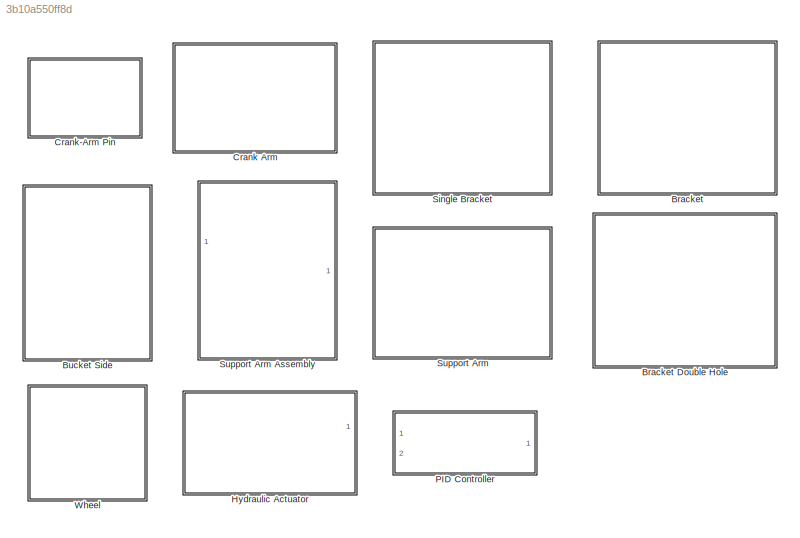
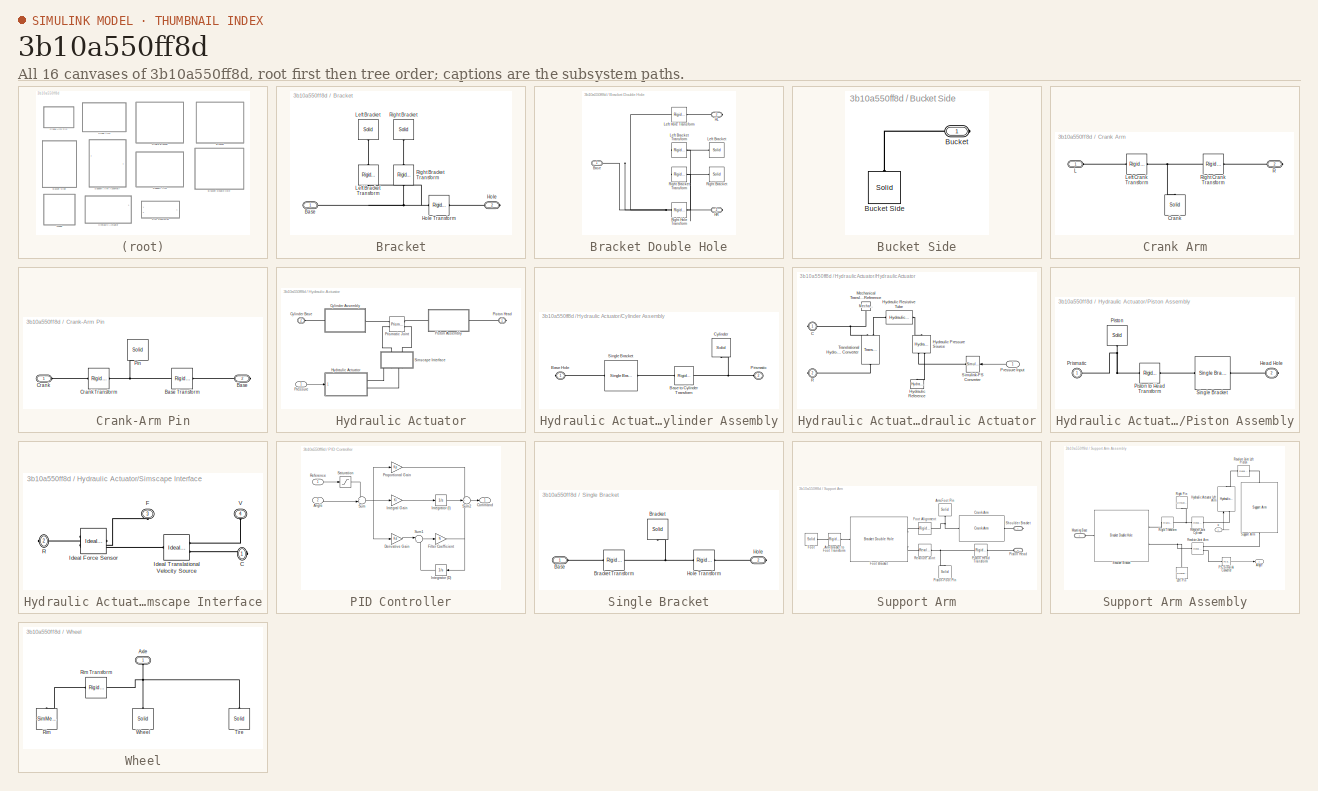
[diagram: thumbnail index - all 16 canvases of the model, root first then tree order]
MODEL slx_3b10a550ff8d
KIND library
BLOCK [SubSystem] Bracket
  Ports = [0, 0, 0, 0, 0, 1, 1]
  RequestExecContextInheritance = off
BLOCK [SubSystem] Bracket Double Hole
  Ports = [0, 0, 0, 0, 0, 1, 2]
  RequestExecContextInheritance = off
BLOCK [PMIOPort] Bracket Double Hole/Base
  Port = 1
  Side = Left
BLOCK [PMIOPort] Bracket Double Hole/HL
  Port = 3
  Side = Right
BLOCK [PMIOPort] Bracket Double Hole/HR
  Port = 2
  Side = Right
BLOCK [Reference] Bracket Double Hole/Left Bracket  REF=sm_lib/Body Elements/Solid
  BlockFunction = simmechanics.library.body_elements.solid
  BrickDimensionUnits = m
  BrickDimensions = [Wbracket Tbracket Hbracket ]
  CenterOfMass = [0 0 0]
  CenterOfMassUnits = m
  ClassName = Solid
  CylinderLength = 1
  CylinderLengthUnits = m
  CylinderRadius = 1
  CylinderRadiusUnits = m
  Density = rho
  DensityBased = on
  DensityUnits = kg/(m^3)
  EllipsoidRadii = [1 1 1]
  EllipsoidRadiiUnits = m
  ExtGeomFileUnits = m
  ExtrusionCrossSection = bracketPoints
  ExtrusionCrossSectionUnits = m
  ExtrusionLength = Tbracket
  ExtrusionLengthUnits = m
  GeometryShape = GeneralExtrusion
  GraphicAmbientColor = [0.15 0.15 0.15 1.0]
  GraphicDiffuseColor = bracketColor
  GraphicEmissiveColor = [0.0 0.0 0.0 1.0]
  GraphicOpacity = 1.0
  GraphicShininess = 75
  GraphicSpecularColor = [0.5 0.5 0.5 1.0]
  GraphicType = FromGeometry
  GraphicVisPropType = SimpleVisualProperties
  InertiaType = CalculateFromGeometry
  MarkerShape = Sphere
  MarkerSize = 10
  MarkerSizeUnits = m
  Mass = 1
  MassUnits = kg
  MomentsOfInertia = [1 1 1]
  MomentsOfInertiaUnits = kg*m^2
  PolygonNumSides = 3
  PolygonOuterRadius = 1
  PolygonOuterRadiusUnits = m
  Ports = [0, 0, 0, 0, 0, 0, 1]
  ProductsOfInertia = [0 0 0]
  ProductsOfInertiaUnits = kg*m^2
  RectangleSize = [1 1]
  RectangleSizeUnits = m
  RevolutionAngle = 180
  RevolutionAngleUnits = deg
  RevolutionCrossSection = [1 1; 1 -1; 2 -1; 2 1]
  RevolutionCrossSectionUnits = m
  RevolutionExtent = Full
  SourceBlock = sm_lib/Body Elements/Solid
  SourceType = Solid
  SphereRadius = 1
  SphereRadiusUnits = m
BLOCK [Reference] Bracket Double Hole/Left Bracket Transform  REF=sm_lib/Frames and
Transforms/Rigid
Transform
  BaseAlignAxisA = +X
  BaseAlignAxisB = +Z
  BlockFunction = simmechanics.library.frames_transforms.rigid_transform
  ClassName = RigidTransform
  FollAlignAxisA = +X
  FollAlignAxisB = +Y
  Ports = [0, 0, 0, 0, 0, 1, 1]
  RotationAngle = 90
  RotationAngleUnits = deg
  RotationArbitraryAxis = [0 0 1]
  RotationMethod = AlignedAxes
  RotationStandardAxis = +X
  SourceBlock = sm_lib/Frames and\nTransforms/Rigid\nTransform
  SourceType = Rigid\nTransform
  TranslationCartesianOffset = [0 0 0]
  TranslationLengthUnit = m
  TranslationMethod = StandardAxis
  TranslationROffset = 0
  TranslationROffsetUnits = m
  TranslationStandardAxis = -Y
  TranslationStandardOffset = (Dbracket-Tbracket)/2
  TranslationThetaOffset = 0
  TranslationThetaOffsetUnits = deg
  TranslationZOffset = 0
  TranslationZOffsetUnits = m
BLOCK [Reference] Bracket Double Hole/Left Hole Transform  REF=sm_lib/Frames and
Transforms/Rigid
Transform
  BaseAlignAxisA = +X
  BaseAlignAxisB = +Z
  BlockFunction = simmechanics.library.frames_transforms.rigid_transform
  ClassName = RigidTransform
  FollAlignAxisA = +X
  FollAlignAxisB = +Y
  Ports = [0, 0, 0, 0, 0, 1, 1]
  RotationAngle = 0
  RotationAngleUnits = deg
  RotationArbitraryAxis = [0 0 1]
  RotationMethod = AlignedAxes
  RotationStandardAxis = +Z
  SourceBlock = sm_lib/Frames and\nTransforms/Rigid\nTransform
  SourceType = Rigid\nTransform
  TranslationCartesianOffset = [-Dhole/2 0 Hhole]
  TranslationLengthUnit = m
  TranslationMethod = Cartesian
  TranslationROffset = 0
  TranslationROffsetUnits = m
  TranslationStandardAxis = +Z
  TranslationStandardOffset = 0
  TranslationThetaOffset = 0
  TranslationThetaOffsetUnits = deg
  TranslationZOffset = 0
  TranslationZOffsetUnits = m
BLOCK [Reference] Bracket Double Hole/Right Bracket  REF=sm_lib/Body Elements/Solid
  BlockFunction = simmechanics.library.body_elements.solid
  BrickDimensionUnits = m
  BrickDimensions = [Wbracket Tbracket Hbracket ]
  CenterOfMass = [0 0 0]
  CenterOfMassUnits = m
  ClassName = Solid
  CylinderLength = 1
  CylinderLengthUnits = m
  CylinderRadius = 1
  CylinderRadiusUnits = m
  Density = rho
  DensityBased = on
  DensityUnits = kg/(m^3)
  EllipsoidRadii = [1 1 1]
  EllipsoidRadiiUnits = m
  ExtGeomFileUnits = m
  ExtrusionCrossSection = bracketPoints
  ExtrusionCrossSectionUnits = m
  ExtrusionLength = Tbracket
  ExtrusionLengthUnits = m
  GeometryShape = GeneralExtrusion
  GraphicAmbientColor = [0.15 0.15 0.15 1.0]
  GraphicDiffuseColor = bracketColor
  GraphicEmissiveColor = [0.0 0.0 0.0 1.0]
  GraphicOpacity = 1.0
  GraphicShininess = 75
  GraphicSpecularColor = [0.5 0.5 0.5 1.0]
  GraphicType = FromGeometry
  GraphicVisPropType = SimpleVisualProperties
  InertiaType = CalculateFromGeometry
  MarkerShape = Sphere
  MarkerSize = 10
  MarkerSizeUnits = m
  Mass = 1
  MassUnits = kg
  MomentsOfInertia = [1 1 1]
  MomentsOfInertiaUnits = kg*m^2
  PolygonNumSides = 3
  PolygonOuterRadius = 1
  PolygonOuterRadiusUnits = m
  Ports = [0, 0, 0, 0, 0, 0, 1]
  ProductsOfInertia = [0 0 0]
  ProductsOfInertiaUnits = kg*m^2
  RectangleSize = [1 1]
  RectangleSizeUnits = m
  RevolutionAngle = 180
  RevolutionAngleUnits = deg
  RevolutionCrossSection = [1 1; 1 -1; 2 -1; 2 1]
  RevolutionCrossSectionUnits = m
  RevolutionExtent = Full
  SourceBlock = sm_lib/Body Elements/Solid
  SourceType = Solid
  SphereRadius = 1
  SphereRadiusUnits = m
BLOCK [Reference] Bracket Double Hole/Right Bracket Transform  REF=sm_lib/Frames and
Transforms/Rigid
Transform
  BaseAlignAxisA = +X
  BaseAlignAxisB = +Z
  BlockFunction = simmechanics.library.frames_transforms.rigid_transform
  ClassName = RigidTransform
  FollAlignAxisA = +X
  FollAlignAxisB = +Y
  Ports = [0, 0, 0, 0, 0, 1, 1]
  RotationAngle = 90
  RotationAngleUnits = deg
  RotationArbitraryAxis = [0 0 1]
  RotationMethod = AlignedAxes
  RotationStandardAxis = +X
  SourceBlock = sm_lib/Frames and\nTransforms/Rigid\nTransform
  SourceType = Rigid\nTransform
  TranslationCartesianOffset = [0 (Dbracket-Tbracket)/2 Hbracket/2]
  TranslationLengthUnit = m
  TranslationMethod = StandardAxis
  TranslationROffset = 0
  TranslationROffsetUnits = m
  TranslationStandardAxis = +Y
  TranslationStandardOffset = (Dbracket-Tbracket)/2
  TranslationThetaOffset = 0
  TranslationThetaOffsetUnits = deg
  TranslationZOffset = 0
  TranslationZOffsetUnits = m
BLOCK [Reference] Bracket Double Hole/Right Hole Transform  REF=sm_lib/Frames and
Transforms/Rigid
Transform
  BaseAlignAxisA = +X
  BaseAlignAxisB = +Z
  BlockFunction = simmechanics.library.frames_transforms.rigid_transform
  ClassName = RigidTransform
  FollAlignAxisA = +X
  FollAlignAxisB = +Y
  Ports = [0, 0, 0, 0, 0, 1, 1]
  RotationAngle = 90
  RotationAngleUnits = deg
  RotationArbitraryAxis = [0 0 1]
  RotationMethod = AlignedAxes
  RotationStandardAxis = +X
  SourceBlock = sm_lib/Frames and\nTransforms/Rigid\nTransform
  SourceType = Rigid\nTransform
  TranslationCartesianOffset = [Dhole/2 0 Hhole]
  TranslationLengthUnit = m
  TranslationMethod = Cartesian
  TranslationROffset = 0
  TranslationROffsetUnits = m
  TranslationStandardAxis = +Z
  TranslationStandardOffset = Hhole
  TranslationThetaOffset = 0
  TranslationThetaOffsetUnits = deg
  TranslationZOffset = 0
  TranslationZOffsetUnits = m
BLOCK [PMIOPort] Bracket/Base
  Port = 1
  Side = Left
BLOCK [PMIOPort] Bracket/Hole
  Port = 2
  Side = Right
BLOCK [Reference] Bracket/Hole Transform  REF=sm_lib/Frames and
Transforms/Rigid
Transform
  BaseAlignAxisA = +X
  BaseAlignAxisB = +Z
  BlockFunction = simmechanics.library.frames_transforms.rigid_transform
  ClassName = RigidTransform
  FollAlignAxisA = +X
  FollAlignAxisB = +Y
  Ports = [0, 0, 0, 0, 0, 1, 1]
  RotationAngle = 90
  RotationAngleUnits = deg
  RotationArbitraryAxis = [0 0 1]
  RotationMethod = AlignedAxes
  RotationStandardAxis = +X
  SourceBlock = sm_lib/Frames and\nTransforms/Rigid\nTransform
  SourceType = Rigid\nTransform
  TranslationCartesianOffset = [0 (Dbracket-Tbracket)/2 Hbracket/2]
  TranslationLengthUnit = m
  TranslationMethod = StandardAxis
  TranslationROffset = 0
  TranslationROffsetUnits = m
  TranslationStandardAxis = +Z
  TranslationStandardOffset = Hhole
  TranslationThetaOffset = 0
  TranslationThetaOffsetUnits = deg
  TranslationZOffset = 0
  TranslationZOffsetUnits = m
BLOCK [Reference] Bracket/Left Bracket  REF=sm_lib/Body Elements/Solid
  BlockFunction = simmechanics.library.body_elements.solid
  BrickDimensionUnits = m
  BrickDimensions = [Wbracket Tbracket Hbracket ]
  CenterOfMass = [0 0 0]
  CenterOfMassUnits = m
  ClassName = Solid
  CylinderLength = 1
  CylinderLengthUnits = m
  CylinderRadius = 1
  CylinderRadiusUnits = m
  Density = rho
  DensityBased = on
  DensityUnits = kg/(m^3)
  EllipsoidRadii = [1 1 1]
  EllipsoidRadiiUnits = m
  ExtGeomFileUnits = m
  ExtrusionCrossSection = bracketPoints
  ExtrusionCrossSectionUnits = m
  ExtrusionLength = Tbracket
  ExtrusionLengthUnits = m
  GeometryShape = GeneralExtrusion
  GraphicAmbientColor = [0.15 0.15 0.15 1.0]
  GraphicDiffuseColor = bracketColor
  GraphicEmissiveColor = [0.0 0.0 0.0 1.0]
  GraphicOpacity = 1.0
  GraphicShininess = 75
  GraphicSpecularColor = [0.5 0.5 0.5 1.0]
  GraphicType = FromGeometry
  GraphicVisPropType = SimpleVisualProperties
  InertiaType = CalculateFromGeometry
  MarkerShape = Sphere
  MarkerSize = 10
  MarkerSizeUnits = m
  Mass = 1
  MassUnits = kg
  MomentsOfInertia = [1 1 1]
  MomentsOfInertiaUnits = kg*m^2
  PolygonNumSides = 3
  PolygonOuterRadius = 1
  PolygonOuterRadiusUnits = m
  Ports = [0, 0, 0, 0, 0, 0, 1]
  ProductsOfInertia = [0 0 0]
  ProductsOfInertiaUnits = kg*m^2
  RectangleSize = [1 1]
  RectangleSizeUnits = m
  RevolutionAngle = 180
  RevolutionAngleUnits = deg
  RevolutionCrossSection = [1 1; 1 -1; 2 -1; 2 1]
  RevolutionCrossSectionUnits = m
  RevolutionExtent = Full
  SourceBlock = sm_lib/Body Elements/Solid
  SourceType = Solid
  SphereRadius = 1
  SphereRadiusUnits = m
BLOCK [Reference] Bracket/Left Bracket Transform  REF=sm_lib/Frames and
Transforms/Rigid
Transform
  BaseAlignAxisA = +X
  BaseAlignAxisB = +Z
  BlockFunction = simmechanics.library.frames_transforms.rigid_transform
  ClassName = RigidTransform
  FollAlignAxisA = +X
  FollAlignAxisB = +Y
  Ports = [0, 0, 0, 0, 0, 1, 1]
  RotationAngle = 90
  RotationAngleUnits = deg
  RotationArbitraryAxis = [0 0 1]
  RotationMethod = AlignedAxes
  RotationStandardAxis = +X
  SourceBlock = sm_lib/Frames and\nTransforms/Rigid\nTransform
  SourceType = Rigid\nTransform
  TranslationCartesianOffset = [0 0 0]
  TranslationLengthUnit = m
  TranslationMethod = StandardAxis
  TranslationROffset = 0
  TranslationROffsetUnits = m
  TranslationStandardAxis = -Y
  TranslationStandardOffset = (Dbracket-Tbracket)/2
  TranslationThetaOffset = 0
  TranslationThetaOffsetUnits = deg
  TranslationZOffset = 0
  TranslationZOffsetUnits = m
BLOCK [Reference] Bracket/Right Bracket  REF=sm_lib/Body Elements/Solid
  BlockFunction = simmechanics.library.body_elements.solid
  BrickDimensionUnits = m
  BrickDimensions = [Wbracket Tbracket Hbracket ]
  CenterOfMass = [0 0 0]
  CenterOfMassUnits = m
  ClassName = Solid
  CylinderLength = 1
  CylinderLengthUnits = m
  CylinderRadius = 1
  CylinderRadiusUnits = m
  Density = rho
  DensityBased = on
  DensityUnits = kg/(m^3)
  EllipsoidRadii = [1 1 1]
  EllipsoidRadiiUnits = m
  ExtGeomFileUnits = m
  ExtrusionCrossSection = bracketPoints
  ExtrusionCrossSectionUnits = m
  ExtrusionLength = Tbracket
  ExtrusionLengthUnits = m
  GeometryShape = GeneralExtrusion
  GraphicAmbientColor = [0.15 0.15 0.15 1.0]
  GraphicDiffuseColor = bracketColor
  GraphicEmissiveColor = [0.0 0.0 0.0 1.0]
  GraphicOpacity = 1.0
  GraphicShininess = 75
  GraphicSpecularColor = [0.5 0.5 0.5 1.0]
  GraphicType = FromGeometry
  GraphicVisPropType = SimpleVisualProperties
  InertiaType = CalculateFromGeometry
  MarkerShape = Sphere
  MarkerSize = 10
  MarkerSizeUnits = m
  Mass = 1
  MassUnits = kg
  MomentsOfInertia = [1 1 1]
  MomentsOfInertiaUnits = kg*m^2
  PolygonNumSides = 3
  PolygonOuterRadius = 1
  PolygonOuterRadiusUnits = m
  Ports = [0, 0, 0, 0, 0, 0, 1]
  ProductsOfInertia = [0 0 0]
  ProductsOfInertiaUnits = kg*m^2
  RectangleSize = [1 1]
  RectangleSizeUnits = m
  RevolutionAngle = 180
  RevolutionAngleUnits = deg
  RevolutionCrossSection = [1 1; 1 -1; 2 -1; 2 1]
  RevolutionCrossSectionUnits = m
  RevolutionExtent = Full
  SourceBlock = sm_lib/Body Elements/Solid
  SourceType = Solid
  SphereRadius = 1
  SphereRadiusUnits = m
BLOCK [Reference] Bracket/Right Bracket Transform  REF=sm_lib/Frames and
Transforms/Rigid
Transform
  BaseAlignAxisA = +X
  BaseAlignAxisB = +Z
  BlockFunction = simmechanics.library.frames_transforms.rigid_transform
  ClassName = RigidTransform
  FollAlignAxisA = +X
  FollAlignAxisB = +Y
  Ports = [0, 0, 0, 0, 0, 1, 1]
  RotationAngle = 90
  RotationAngleUnits = deg
  RotationArbitraryAxis = [0 0 1]
  RotationMethod = AlignedAxes
  RotationStandardAxis = +X
  SourceBlock = sm_lib/Frames and\nTransforms/Rigid\nTransform
  SourceType = Rigid\nTransform
  TranslationCartesianOffset = [0 (Dbracket-Tbracket)/2 Hbracket/2]
  TranslationLengthUnit = m
  TranslationMethod = StandardAxis
  TranslationROffset = 0
  TranslationROffsetUnits = m
  TranslationStandardAxis = +Y
  TranslationStandardOffset = (Dbracket-Tbracket)/2
  TranslationThetaOffset = 0
  TranslationThetaOffsetUnits = deg
  TranslationZOffset = 0
  TranslationZOffsetUnits = m
BLOCK [SubSystem] Bucket Side
  Ports = [0, 0, 0, 0, 0, 0, 1]
  RequestExecContextInheritance = off
BLOCK [PMIOPort] Bucket Side/Bucket
  Port = 1
  Side = Right
BLOCK [Reference] Bucket Side/Bucket Side  REF=sm_lib/Body Elements/Solid
  BlockFunction = simmechanics.library.body_elements.solid
  BrickDimensionUnits = m
  BrickDimensions = [1 1 1]
  CenterOfMass = [0 0 0]
  CenterOfMassUnits = m
  ClassName = Solid
  CylinderLength = 1
  CylinderLengthUnits = m
  CylinderRadius = 1
  CylinderRadiusUnits = m
  Density = rho
  DensityBased = on
  DensityUnits = kg/(m^3)
  EllipsoidRadii = [1 1 1]
  EllipsoidRadiiUnits = m
  ExtGeomFileType = STL
  ExtGeomFileUnits = m
  ExtrusionCrossSection = bucketSide
  ExtrusionCrossSectionUnits = m
  ExtrusionLength = bucketThickness
  ExtrusionLengthUnits = m
  GeometryShape = GeneralExtrusion
  GraphicAmbientColor = [0.15 0.15 0.15 1.0]
  GraphicDiffuseColor = bucketColor
  GraphicEmissiveColor = [0.0 0.0 0.0 1.0]
  GraphicOpacity = 1.0
  GraphicShininess = 75
  GraphicSpecularColor = [0.5 0.5 0.5 1.0]
  GraphicType = FromGeometry
  GraphicVisPropType = SimpleVisualProperties
  InertiaType = CalculateFromGeometry
  MarkerShape = Sphere
  MarkerSize = 10
  MarkerSizeUnits = m
  Mass = 1
  MassUnits = kg
  MomentsOfInertia = [1 1 1]
  MomentsOfInertiaUnits = kg*m^2
  PolygonNumSides = 3
  PolygonOuterRadius = 1
  PolygonOuterRadiusUnits = m
  Ports = [0, 0, 0, 0, 0, 0, 1]
  ProductsOfInertia = [0 0 0]
  ProductsOfInertiaUnits = kg*m^2
  RectangleSize = [1 1]
  RectangleSizeUnits = m
  RevolutionAngle = 180
  RevolutionAngleUnits = deg
  RevolutionCrossSection = [1 1; 1 -1; 2 -1; 2 1]
  RevolutionCrossSectionUnits = m
  RevolutionExtent = Full
  SourceBlock = sm_lib/Body Elements/Solid
  SourceType = Solid
  SphereRadius = 1
  SphereRadiusUnits = m
BLOCK [SubSystem] Crank Arm
  Ports = [0, 0, 0, 0, 0, 1, 1]
  RequestExecContextInheritance = off
BLOCK [Reference] Crank Arm/Crank  REF=sm_lib/Body Elements/Solid
  BlockFunction = simmechanics.library.body_elements.solid
  BrickDimensionUnits = m
  BrickDimensions = [1 1 1]
  CenterOfMass = [0 0 0]
  CenterOfMassUnits = m
  ClassName = Solid
  CylinderLength = 1
  CylinderLengthUnits = m
  CylinderRadius = 1
  CylinderRadiusUnits = m
  Density = rho
  DensityBased = on
  DensityUnits = kg/(m^3)
  EllipsoidRadii = [1 1 1]
  EllipsoidRadiiUnits = m
  ExtGeomFileUnits = m
  ExtrusionCrossSection = crankPoints
  ExtrusionCrossSectionUnits = m
  ExtrusionLength = T
  ExtrusionLengthUnits = m
  GeometryShape = GeneralExtrusion
  GraphicAmbientColor = [0.15 0.15 0.15 1.0]
  GraphicDiffuseColor = color
  GraphicEmissiveColor = [0.0 0.0 0.0 1.0]
  GraphicOpacity = 1.0
  GraphicShininess = 75
  GraphicSpecularColor = [0.5 0.5 0.5 1.0]
  GraphicType = FromGeometry
  GraphicVisPropType = SimpleVisualProperties
  InertiaType = CalculateFromGeometry
  MarkerShape = Sphere
  MarkerSize = 10
  MarkerSizeUnits = m
  Mass = 1
  MassUnits = kg
  MomentsOfInertia = [1 1 1]
  MomentsOfInertiaUnits = kg*m^2
  PolygonNumSides = 3
  PolygonOuterRadius = 1
  PolygonOuterRadiusUnits = m
  Ports = [0, 0, 0, 0, 0, 0, 1]
  ProductsOfInertia = [0 0 0]
  ProductsOfInertiaUnits = kg*m^2
  RectangleSize = [1 1]
  RectangleSizeUnits = m
  RevolutionAngle = 180
  RevolutionAngleUnits = deg
  RevolutionCrossSection = [1 1; 1 -1; 2 -1; 2 1]
  RevolutionCrossSectionUnits = m
  RevolutionExtent = Full
  SourceBlock = sm_lib/Body Elements/Solid
  SourceType = Solid
  SphereRadius = 1
  SphereRadiusUnits = m
BLOCK [PMIOPort] Crank Arm/L
  Port = 1
  Side = Left
BLOCK [Reference] Crank Arm/Left Crank Transform  REF=sm_lib/Frames and
Transforms/Rigid
Transform
  BaseAlignAxisA = +Y
  BaseAlignAxisB = +Z
  BlockFunction = simmechanics.library.frames_transforms.rigid_transform
  ClassName = RigidTransform
  FollAlignAxisA = +X
  FollAlignAxisB = +Y
  Ports = [0, 0, 0, 0, 0, 1, 1]
  RotationAngle = 0
  RotationAngleUnits = deg
  RotationArbitraryAxis = [0 0 1]
  RotationMethod = None
  RotationStandardAxis = +Z
  SourceBlock = sm_lib/Frames and\nTransforms/Rigid\nTransform
  SourceType = Rigid\nTransform
  TranslationCartesianOffset = [0 0 0]
  TranslationLengthUnit = m
  TranslationMethod = StandardAxis
  TranslationROffset = 0
  TranslationROffsetUnits = m
  TranslationStandardAxis = -X
  TranslationStandardOffset = D/2
  TranslationThetaOffset = 0
  TranslationThetaOffsetUnits = deg
  TranslationZOffset = 0
  TranslationZOffsetUnits = m
BLOCK [PMIOPort] Crank Arm/R
  Port = 2
  Side = Right
BLOCK [Reference] Crank Arm/Right Crank Transform  REF=sm_lib/Frames and
Transforms/Rigid
Transform
  BaseAlignAxisA = +Y
  BaseAlignAxisB = +Z
  BlockFunction = simmechanics.library.frames_transforms.rigid_transform
  ClassName = RigidTransform
  FollAlignAxisA = +X
  FollAlignAxisB = +Y
  Ports = [0, 0, 0, 0, 0, 1, 1]
  RotationAngle = 0
  RotationAngleUnits = deg
  RotationArbitraryAxis = [0 0 1]
  RotationMethod = None
  RotationStandardAxis = +Z
  SourceBlock = sm_lib/Frames and\nTransforms/Rigid\nTransform
  SourceType = Rigid\nTransform
  TranslationCartesianOffset = [0 0 0]
  TranslationLengthUnit = m
  TranslationMethod = StandardAxis
  TranslationROffset = 0
  TranslationROffsetUnits = m
  TranslationStandardAxis = +X
  TranslationStandardOffset = D/2
  TranslationThetaOffset = 0
  TranslationThetaOffsetUnits = deg
  TranslationZOffset = 0
  TranslationZOffsetUnits = m
BLOCK [SubSystem] Crank-Arm Pin
  Ports = [0, 0, 0, 0, 0, 1, 1]
  RequestExecContextInheritance = off
BLOCK [PMIOPort] Crank-Arm Pin/Base
  Port = 2
  Side = Right
BLOCK [Reference] Crank-Arm Pin/Base Transform  REF=sm_lib/Frames and
Transforms/Rigid
Transform
  BaseAlignAxisA = +Y
  BaseAlignAxisB = +Z
  BlockFunction = simmechanics.library.frames_transforms.rigid_transform
  ClassName = RigidTransform
  FollAlignAxisA = +X
  FollAlignAxisB = +Y
  Ports = [0, 0, 0, 0, 0, 1, 1]
  RotationAngle = 0
  RotationAngleUnits = deg
  RotationArbitraryAxis = [0 0 1]
  RotationMethod = None
  RotationStandardAxis = +Z
  SourceBlock = sm_lib/Frames and\nTransforms/Rigid\nTransform
  SourceType = Rigid\nTransform
  TranslationCartesianOffset = [0 0 0]
  TranslationLengthUnit = m
  TranslationMethod = StandardAxis
  TranslationROffset = 0
  TranslationROffsetUnits = m
  TranslationStandardAxis = -Z
  TranslationStandardOffset = L/2
  TranslationThetaOffset = 0
  TranslationThetaOffsetUnits = deg
  TranslationZOffset = 0
  TranslationZOffsetUnits = m
BLOCK [PMIOPort] Crank-Arm Pin/Crank
  Port = 1
  Side = Left
BLOCK [Reference] Crank-Arm Pin/Crank Transform  REF=sm_lib/Frames and
Transforms/Rigid
Transform
  BaseAlignAxisA = +Y
  BaseAlignAxisB = +Z
  BlockFunction = simmechanics.library.frames_transforms.rigid_transform
  ClassName = RigidTransform
  FollAlignAxisA = +X
  FollAlignAxisB = +Y
  Ports = [0, 0, 0, 0, 0, 1, 1]
  RotationAngle = 0
  RotationAngleUnits = deg
  RotationArbitraryAxis = [0 0 1]
  RotationMethod = None
  RotationStandardAxis = +Z
  SourceBlock = sm_lib/Frames and\nTransforms/Rigid\nTransform
  SourceType = Rigid\nTransform
  TranslationCartesianOffset = [0 0 0]
  TranslationLengthUnit = m
  TranslationMethod = StandardAxis
  TranslationROffset = 0
  TranslationROffsetUnits = m
  TranslationStandardAxis = +Z
  TranslationStandardOffset = L/2 - 0.65*T
  TranslationThetaOffset = 0
  TranslationThetaOffsetUnits = deg
  TranslationZOffset = 0
  TranslationZOffsetUnits = m
BLOCK [Reference] Crank-Arm Pin/Pin  REF=sm_lib/Body Elements/Solid
  BlockFunction = simmechanics.library.body_elements.solid
  BrickDimensionUnits = m
  BrickDimensions = [1 1 1]
  CenterOfMass = [0 0 0]
  CenterOfMassUnits = m
  ClassName = Solid
  CylinderLength = L
  CylinderLengthUnits = m
  CylinderRadius = R
  CylinderRadiusUnits = m
  Density = rho
  DensityBased = on
  DensityUnits = kg/(m^3)
  EllipsoidRadii = [1 1 1]
  EllipsoidRadiiUnits = m
  ExtGeomFileUnits = m
  ExtrusionCrossSection = [1 0]
  ExtrusionCrossSectionUnits = m
  ExtrusionLength = 1
  ExtrusionLengthUnits = m
  GeometryShape = Cylinder
  GraphicAmbientColor = [0.15 0.15 0.15 1.0]
  GraphicDiffuseColor = color
  GraphicEmissiveColor = [0.0 0.0 0.0 1.0]
  GraphicOpacity = 1.0
  GraphicShininess = 75
  GraphicSpecularColor = [0.5 0.5 0.5 1.0]
  GraphicType = FromGeometry
  GraphicVisPropType = SimpleVisualProperties
  InertiaType = CalculateFromGeometry
  MarkerShape = Sphere
  MarkerSize = 10
  MarkerSizeUnits = m
  Mass = 1
  MassUnits = kg
  MomentsOfInertia = [1 1 1]
  MomentsOfInertiaUnits = kg*m^2
  PolygonNumSides = 3
  PolygonOuterRadius = 1
  PolygonOuterRadiusUnits = m
  Ports = [0, 0, 0, 0, 0, 0, 1]
  ProductsOfInertia = [0 0 0]
  ProductsOfInertiaUnits = kg*m^2
  RectangleSize = [1 1]
  RectangleSizeUnits = m
  RevolutionAngle = 180
  RevolutionAngleUnits = deg
  RevolutionCrossSection = [1 1; 1 -1; 2 -1; 2 1]
  RevolutionCrossSectionUnits = m
  RevolutionExtent = Full
  SourceBlock = sm_lib/Body Elements/Solid
  SourceType = Solid
  SphereRadius = 1
  SphereRadiusUnits = m
BLOCK [SubSystem] Hydraulic Actuator
  Ports = [1, 0, 0, 0, 0, 1, 1]
  RequestExecContextInheritance = off
BLOCK [SubSystem] Hydraulic Actuator/Cylinder Assembly
  Ports = [0, 0, 0, 0, 0, 1, 1]
  RequestExecContextInheritance = off
BLOCK [PMIOPort] Hydraulic Actuator/Cylinder Assembly/Base Hole
  Port = 1
  Side = Right
BLOCK [Reference] Hydraulic Actuator/Cylinder Assembly/Base to Cylinder Transform  REF=sm_lib/Frames and
Transforms/Rigid
Transform
  BaseAlignAxisA = +X
  BaseAlignAxisB = -Z
  BlockFunction = simmechanics.library.frames_transforms.rigid_transform
  ClassName = RigidTransform
  FollAlignAxisA = +X
  FollAlignAxisB = +Z
  Ports = [0, 0, 0, 0, 0, 1, 1]
  RotationAngle = 90
  RotationAngleUnits = deg
  RotationArbitraryAxis = [0 0 1]
  RotationMethod = AlignedAxes
  RotationStandardAxis = +X
  SourceBlock = sm_lib/Frames and\nTransforms/Rigid\nTransform
  SourceType = Rigid\nTransform
  TranslationCartesianOffset = [0 0 0]
  TranslationLengthUnit = m
  TranslationMethod = StandardAxis
  TranslationROffset = 0
  TranslationROffsetUnits = m
  TranslationStandardAxis = -Z
  TranslationStandardOffset = (Lcyl/2)
  TranslationThetaOffset = 0
  TranslationThetaOffsetUnits = deg
  TranslationZOffset = 0
  TranslationZOffsetUnits = m
BLOCK [Reference] Hydraulic Actuator/Cylinder Assembly/Cylinder  REF=sm_lib/Body Elements/Solid
  BlockFunction = simmechanics.library.body_elements.solid
  BrickDimensionUnits = m
  BrickDimensions = [3 0.5 0.5]
  CenterOfMass = [0 0 0]
  CenterOfMassUnits = m
  ClassName = Solid
  CylinderLength = Lcyl
  CylinderLengthUnits = m
  CylinderRadius = Rcyl
  CylinderRadiusUnits = m
  Density = rhoCyl
  DensityBased = on
  DensityUnits = kg/(m^3)
  EllipsoidRadii = [1 1 1]
  EllipsoidRadiiUnits = m
  ExtGeomFileType = STL
  ExtGeomFileUnits = m
  ExtrusionCrossSection = cylSection
  ExtrusionCrossSectionUnits = m
  ExtrusionLength = Lcyl
  ExtrusionLengthUnits = m
  GeometryShape = GeneralExtrusion
  GraphicAmbientColor = [0.15 0.15 0.15 1.0]
  GraphicDiffuseColor = cylColor
  GraphicEmissiveColor = [0.0 0.0 0.0 1.0]
  GraphicOpacity = 1.0
  GraphicShininess = 75
  GraphicSpecularColor = [0.5 0.5 0.5 1.0]
  GraphicType = FromGeometry
  GraphicVisPropType = SimpleVisualProperties
  InertiaType = CalculateFromGeometry
  MarkerShape = Sphere
  MarkerSize = 10
  MarkerSizeUnits = m
  Mass = 1
  MassUnits = kg
  MomentsOfInertia = [1 1 1]
  MomentsOfInertiaUnits = kg*m^2
  PolygonNumSides = 3
  PolygonOuterRadius = 1
  PolygonOuterRadiusUnits = m
  Ports = [0, 0, 0, 0, 0, 0, 1]
  ProductsOfInertia = [0 0 0]
  ProductsOfInertiaUnits = kg*m^2
  RectangleSize = [1 1]
  RectangleSizeUnits = m
  RevolutionAngle = 180
  RevolutionAngleUnits = deg
  RevolutionCrossSection = [1 1; 1 -1; 2 -1; 2 1]
  RevolutionCrossSectionUnits = m
  RevolutionExtent = Full
  SourceBlock = sm_lib/Body Elements/Solid
  SourceType = Solid
  SphereRadius = 1
  SphereRadiusUnits = m
BLOCK [PMIOPort] Hydraulic Actuator/Cylinder Assembly/Prismatic
  Port = 2
  Side = Left
BLOCK [Reference] Hydraulic Actuator/Cylinder Assembly/Single Bracket  REF=Backhoe_Lib/Single Bracket
  Hbracket = Lbase
  Hhole = Lbase-(Wbase/2)
  Nc = 25
  Ports = [0, 0, 0, 0, 0, 1, 1]
  Rhole = Rbp
  SourceBlock = Backhoe_Lib/Single Bracket
  SourceType = Single Bracket
  Tbracket = Wbase
  Wbracket = Wbase
  bracketColor = connColor
  rho = rhoConn
BLOCK [PMIOPort] Hydraulic Actuator/Cylinder Base
  Port = 2
  Side = Left
BLOCK [SubSystem] Hydraulic Actuator/Hydraulic Actuator
  Ports = [1, 0, 0, 0, 0, 0, 2]
  RequestExecContextInheritance = off
BLOCK [PMIOPort] Hydraulic Actuator/Hydraulic Actuator/C
  Port = 1
  Side = Right
BLOCK [Reference] Hydraulic Actuator/Hydraulic Actuator/Hydraulic Pressure Source  REF=fl_lib/Hydraulic/Hydraulic Sources/Hydraulic Pressure
Source
  ClassName = pressure
  ComponentPath = foundation.hydraulic.sources.pressure
  ComponentVariantNames = pressure
  ComponentVariants = foundation.hydraulic.sources.pressure
  LocalVarDescs = |q|p
  LocalVarLogging = [0 0]
  LocalVarNames = |q|p
  Ports = [0, 0, 0, 0, 0, 1, 2]
  SchemaVersion = 1
  SourceBlock = fl_lib/Hydraulic/Hydraulic Sources/Hydraulic Pressure\nSource
  SourceFile = foundation.hydraulic.sources.pressure
  SourceType = Hydraulic Pressure\nSource
  p_Log = off
  q_Log = off
BLOCK [Reference] Hydraulic Actuator/Hydraulic Actuator/Hydraulic Reference  REF=fl_lib/Hydraulic/Hydraulic Elements/Hydraulic Reference
  ClassName = reference
  ComponentPath = foundation.hydraulic.elements.reference
  ComponentVariantNames = reference
  ComponentVariants = foundation.hydraulic.elements.reference
  LocalVarDescs = |q
  LocalVarLogging = 0
  LocalVarNames = |q
  Ports = [0, 0, 0, 0, 0, 1]
  SchemaVersion = 1
  SourceBlock = fl_lib/Hydraulic/Hydraulic Elements/Hydraulic Reference
  SourceFile = foundation.hydraulic.elements.reference
  SourceType = Hydraulic Reference
  q_Log = off
BLOCK [Reference] Hydraulic Actuator/Hydraulic Actuator/Hydraulic Resistive Tube  REF=fl_lib/Hydraulic/Hydraulic Elements/Hydraulic Resistive
Tube
  ClassName = resistive_tube
  ComponentPath = foundation.hydraulic.elements.resistive_tube
  ComponentVariantNames = resistive_tube
  ComponentVariants = foundation.hydraulic.elements.resistive_tube
  D_h = 0.0112
  D_h_unit = m
  LocalVarDescs = |Flow rate through the tube m^3/s)|Pressure loss across the tube (Pa)|Reynolds number|Friction coefficient|Power dissipated in the tube (W)
  LocalVarLogging = [0 0 0 0 0]
  LocalVarNames = |flow_rate|pr_loss|Re|fr_coef|power
  Ports = [0, 0, 0, 0, 0, 1, 1]
  Re_lam = 2e+3
  Re_lam_unit = 1
  Re_turb = 4e+3
  Re_turb_unit = 1
  SchemaVersion = 1
  SourceBlock = fl_lib/Hydraulic/Hydraulic Elements/Hydraulic Resistive\nTube
  SourceFile = foundation.hydraulic.elements.resistive_tube
  SourceType = Hydraulic Resistive\nTube
  area = 1e-4
  area_unit = m^2
  cs_type = 1
  cs_type_unit = 1
  d_in = 0.01
  d_in_unit = m
  f_gain = 5e-6
  f_gain_unit = 1
  f_lam = 0.03
  f_lam_unit = 1
  f_turb = 0.04
  f_turb_unit = 1
  length = 5
  length_ad = 3
  length_ad_unit = m
  length_eff = 6
  length_eff_unit = m
  length_unit = m
  p_Log = off
  power_Log = off
  q_Log = off
  rel_roughness = 0.001
  rel_roughness_unit = 1
  roughness = 2.5e-5
  roughness_unit = m
  s_factor = 64
  s_factor_unit = 1
BLOCK [Reference] Hydraulic Actuator/Hydraulic Actuator/Mechanical Translational Reference  REF=fl_lib/Mechanical/Translational
Elements/Mechanical
Translational
Reference
  ClassName = reference
  ComponentPath = foundation.mechanical.translational.reference
  ComponentVariantNames = reference
  ComponentVariants = foundation.mechanical.translational.reference
  Ports = [0, 0, 0, 0, 0, 1]
  SchemaVersion = 1
  SourceBlock = fl_lib/Mechanical/Translational\nElements/Mechanical\nTranslational\nReference
  SourceFile = foundation.mechanical.translational.reference
  SourceType = Mechanical\nTranslational\nReference
BLOCK [Inport] Hydraulic Actuator/Hydraulic Actuator/Pressure Input
  IconDisplay = Port number
BLOCK [PMIOPort] Hydraulic Actuator/Hydraulic Actuator/R
  Port = 2
  Side = Right
BLOCK [Reference] Hydraulic Actuator/Hydraulic Actuator/Simulink-PS Converter  REF=nesl_utility/Simulink-PS
Converter
  AffineConversion = off
  Frequencies = []
  InputFilterTimeConstant = .001
  InputFiltering = off
  LeftPortType = input
  NoiseDistribution = none
  NoiseParameters = []
  PhysicalDomain = network_engine_domain
  Ports = [1, 0, 0, 0, 0, 0, 1]
  PseudoPeriodic = off
  RightPortType = output
  SimscapeFilterOrder = 1
  SourceBlock = nesl_utility/Simulink-PS\nConverter
  SourceType = Simulink-PS\nConverter
  SubClassName = ps_input
  UdotUserProvided = 1
  Unit = Pa
BLOCK [Reference] Hydraulic Actuator/Hydraulic Actuator/Translational Hydro-Mechanical Converter  REF=fl_lib/Hydraulic/Hydraulic Elements/Translational
Hydro-Mechanical
Converter
  ClassName = translational_converter
  ComponentPath = foundation.hydraulic.elements.translational_converter
  ComponentVariantNames = translational_converter
  ComponentVariants = foundation.hydraulic.elements.translational_converter
  Ports = [0, 0, 0, 0, 0, 2, 1]
  SchemaVersion = 1
  SourceBlock = fl_lib/Hydraulic/Hydraulic Elements/Translational\nHydro-Mechanical\nConverter
  SourceFile = foundation.hydraulic.elements.translational_converter
  SourceType = Translational\nHydro-Mechanical\nConverter
  V_dead = 1e-4
  V_dead_unit = m^3
  area = pi*(Rcyl^2)
  area_unit = m^2
  compressibility = 0
  compressibility_unit = 1
  init_pos = 0
  init_pos_unit = m
  initial_pressure = 0
  initial_pressure_unit = Pa
  k_sh = 1.4
  k_sh_unit = 1
  or = 1
  or_unit = 1
BLOCK [SubSystem] Hydraulic Actuator/Piston Assembly
  Ports = [0, 0, 0, 0, 0, 1, 1]
  RequestExecContextInheritance = off
BLOCK [PMIOPort] Hydraulic Actuator/Piston Assembly/Head Hole
  Port = 2
  Side = Right
BLOCK [Reference] Hydraulic Actuator/Piston Assembly/Piston  REF=sm_lib/Body Elements/Solid
  BlockFunction = simmechanics.library.body_elements.solid
  BrickDimensionUnits = m
  BrickDimensions = [3 0.5 0.5]
  CenterOfMass = [0 0 0]
  CenterOfMassUnits = m
  ClassName = Solid
  CylinderLength = Lpist
  CylinderLengthUnits = m
  CylinderRadius = Rpist
  CylinderRadiusUnits = m
  Density = rhoPist
  DensityBased = on
  DensityUnits = kg/(m^3)
  EllipsoidRadii = [1 1 1]
  EllipsoidRadiiUnits = m
  ExtGeomFileType = STL
  ExtGeomFileUnits = m
  ExtrusionCrossSection = [1 1; -1 1; -1 -1; 1 -1]
  ExtrusionCrossSectionUnits = m
  ExtrusionLength = 1
  ExtrusionLengthUnits = m
  GeometryShape = Cylinder
  GraphicAmbientColor = [0.15 0.15 0.15 1.0]
  GraphicDiffuseColor = pistColor
  GraphicEmissiveColor = [0.0 0.0 0.0 1.0]
  GraphicOpacity = 1.0
  GraphicShininess = 75
  GraphicSpecularColor = [0.5 0.5 0.5 1.0]
  GraphicType = FromGeometry
  GraphicVisPropType = SimpleVisualProperties
  InertiaType = CalculateFromGeometry
  MarkerShape = Sphere
  MarkerSize = 10
  MarkerSizeUnits = m
  Mass = 1
  MassUnits = kg
  MomentsOfInertia = [1 1 1]
  MomentsOfInertiaUnits = kg*m^2
  PolygonNumSides = 3
  PolygonOuterRadius = 1
  PolygonOuterRadiusUnits = m
  Ports = [0, 0, 0, 0, 0, 0, 1]
  ProductsOfInertia = [0 0 0]
  ProductsOfInertiaUnits = kg*m^2
  RectangleSize = [1 1]
  RectangleSizeUnits = m
  RevolutionAngle = 180
  RevolutionAngleUnits = deg
  RevolutionCrossSection = [1 1; 1 -1; 2 -1; 2 1]
  RevolutionCrossSectionUnits = m
  RevolutionExtent = Full
  SourceBlock = sm_lib/Body Elements/Solid
  SourceType = Solid
  SphereRadius = 1
  SphereRadiusUnits = m
BLOCK [Reference] Hydraulic Actuator/Piston Assembly/Piston to Head Transform  REF=sm_lib/Frames and
Transforms/Rigid
Transform
  BaseAlignAxisA = -Y
  BaseAlignAxisB = +Z
  BlockFunction = simmechanics.library.frames_transforms.rigid_transform
  ClassName = RigidTransform
  FollAlignAxisA = +Y
  FollAlignAxisB = +Z
  Ports = [0, 0, 0, 0, 0, 1, 1]
  RotationAngle = 90
  RotationAngleUnits = deg
  RotationArbitraryAxis = [0 0 1]
  RotationMethod = AlignedAxes
  RotationStandardAxis = -X
  SourceBlock = sm_lib/Frames and\nTransforms/Rigid\nTransform
  SourceType = Rigid\nTransform
  TranslationCartesianOffset = [0 0 0]
  TranslationLengthUnit = m
  TranslationMethod = StandardAxis
  TranslationROffset = 0
  TranslationROffsetUnits = m
  TranslationStandardAxis = +Z
  TranslationStandardOffset = Lpist/2
  TranslationThetaOffset = 0
  TranslationThetaOffsetUnits = deg
  TranslationZOffset = 0
  TranslationZOffsetUnits = m
BLOCK [PMIOPort] Hydraulic Actuator/Piston Assembly/Prismatic
  Port = 1
  Side = Left
BLOCK [Reference] Hydraulic Actuator/Piston Assembly/Single Bracket  REF=Backhoe_Lib/Single Bracket
  Hbracket = Lbase
  Hhole = Lhead-(Whead/2)
  Nc = 25
  Ports = [0, 0, 0, 0, 0, 1, 1]
  Rhole = Rhp
  SourceBlock = Backhoe_Lib/Single Bracket
  SourceType = Single Bracket
  Tbracket = Whead
  Wbracket = Wbase
  bracketColor = connColor
  rho = rhoConn
BLOCK [PMIOPort] Hydraulic Actuator/Piston Head
  Port = 1
  Side = Right
BLOCK [Inport] Hydraulic Actuator/Pressure
  IconDisplay = Port number
BLOCK [Reference] Hydraulic Actuator/Prismatic  Joint  REF=sm_lib/Joints/Prismatic
Joint
  BlockFunction = simmechanics.library.joints.prismatic_joint
  ClassName = PrismaticJoint
  CompositeWrenchDir = FollowerOnBase
  CompositeWrenchFrame = BaseFrame
  DampingCoefficient = 0
  DampingCoefficientUnits = N/(m/s)
  EquilibriumPosition = 0
  EquilibriumPositionUnits = m
  MotionActuationMode = ComputedMotion
  Ports = [0, 0, 0, 0, 0, 2, 2]
  PositionTargetPriority = Low
  PositionTargetSpecify = off
  PositionTargetValue = 0
  PositionTargetValueUnits = m
  SenseAcceleration = off
  SenseConstraintForce = off
  SenseConstraintForceX = off
  SenseConstraintForceY = off
  SenseConstraintForceZ = off
  SenseConstraintTorque = off
  SenseConstraintTorqueX = off
  SenseConstraintTorqueY = off
  SenseConstraintTorqueZ = off
  SensePosition = off
  SenseTorqueForce = off
  SenseTotalForce = off
  SenseTotalForceX = off
  SenseTotalForceY = off
  SenseTotalForceZ = off
  SenseTotalTorque = off
  SenseTotalTorqueX = off
  SenseTotalTorqueY = off
  SenseTotalTorqueZ = off
  SenseVelocity = on
  SourceBlock = sm_lib/Joints/Prismatic\nJoint
  SourceType = Prismatic\nJoint
  SpringStiffness = 0
  SpringStiffnessUnits = N/m
  TorqueActuationMode = InputTorque
  VelocityTargetPriority = High
  VelocityTargetSpecify = off
  VelocityTargetValue = 0
  VelocityTargetValueUnits = m/s
BLOCK [SubSystem] Hydraulic Actuator/Simscape Interface
  Ports = [0, 0, 0, 0, 0, 2, 2]
  RequestExecContextInheritance = off
BLOCK [PMIOPort] Hydraulic Actuator/Simscape Interface/C
  Port = 1
  Side = Right
BLOCK [PMIOPort] Hydraulic Actuator/Simscape Interface/F
  Port = 3
  Side = Left
BLOCK [Reference] Hydraulic Actuator/Simscape Interface/Ideal Force Sensor  REF=fl_lib/Mechanical/Mechanical Sensors/Ideal Force Sensor
  ClassName = force
  ComponentPath = foundation.mechanical.sensors.force
  ComponentVariantNames = force
  ComponentVariants = foundation.mechanical.sensors.force
  Ports = [0, 0, 0, 0, 0, 1, 2]
  SchemaVersion = 1
  SourceBlock = fl_lib/Mechanical/Mechanical Sensors/Ideal Force Sensor
  SourceFile = foundation.mechanical.sensors.force
  SourceType = Ideal Force Sensor
BLOCK [Reference] Hydraulic Actuator/Simscape Interface/Ideal Translational Velocity Source  REF=fl_lib/Mechanical/Mechanical Sources/Ideal Translational
Velocity Source
  ClassName = velocity
  ComponentPath = foundation.mechanical.sources.velocity
  ComponentVariantNames = velocity
  ComponentVariants = foundation.mechanical.sources.velocity
  Ports = [0, 0, 0, 0, 0, 1, 2]
  SchemaVersion = 1
  SourceBlock = fl_lib/Mechanical/Mechanical Sources/Ideal Translational\nVelocity Source
  SourceFile = foundation.mechanical.sources.velocity
  SourceType = Ideal Translational\nVelocity Source
BLOCK [PMIOPort] Hydraulic Actuator/Simscape Interface/R
  Port = 2
  Side = Right
BLOCK [PMIOPort] Hydraulic Actuator/Simscape Interface/V
  Port = 4
  Side = Left
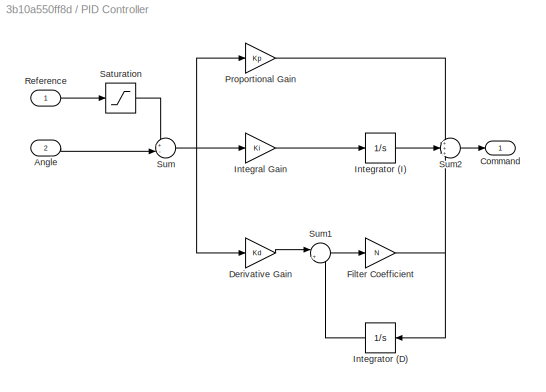
BLOCK [SubSystem] PID Controller
  Ports = [2, 1]
  RequestExecContextInheritance = off
BLOCK [Inport] PID Controller/Angle
  IconDisplay = Port number
  Port = 2
BLOCK [Outport] PID Controller/Command
  IconDisplay = Port number
BLOCK [Gain] PID Controller/Derivative Gain
  Gain = Kd
  OutDataTypeStr = Inherit: Inherit via internal rule
  ParamDataTypeStr = Inherit: Inherit via internal rule
  SaturateOnIntegerOverflow = off
BLOCK [Gain] PID Controller/Filter Coefficient
  Gain = N
  OutDataTypeStr = Inherit: Inherit via internal rule
  ParamDataTypeStr = Inherit: Inherit via internal rule
  SaturateOnIntegerOverflow = off
BLOCK [Gain] PID Controller/Integral Gain
  Gain = Ki
  OutDataTypeStr = Inherit: Inherit via internal rule
  ParamDataTypeStr = Inherit: Inherit via internal rule
  SaturateOnIntegerOverflow = off
BLOCK [Integrator] PID Controller/Integrator (D)
  Ports = [1, 1]
BLOCK [Integrator] PID Controller/Integrator (I)
  Ports = [1, 1]
BLOCK [Gain] PID Controller/Proportional Gain
  Gain = Kp
  OutDataTypeStr = Inherit: Inherit via internal rule
  ParamDataTypeStr = Inherit: Inherit via internal rule
  SaturateOnIntegerOverflow = off
BLOCK [Inport] PID Controller/Reference
  IconDisplay = Port number
BLOCK [Saturate] PID Controller/Saturation
  InputPortMap = u0
  LowerLimit = lowerLim
  Ports = [1, 1]
  UpperLimit = upperLim
BLOCK [Sum] PID Controller/Sum
  IconShape = round
  InputSameDT = off
  Inputs = +-|
  OutDataTypeStr = Inherit: Inherit via internal rule
  Ports = [2, 1]
  SaturateOnIntegerOverflow = off
BLOCK [Sum] PID Controller/Sum1
  IconShape = round
  InputSameDT = off
  Inputs = |+-
  OutDataTypeStr = Inherit: Inherit via internal rule
  Ports = [2, 1]
  SaturateOnIntegerOverflow = off
BLOCK [Sum] PID Controller/Sum2
  IconShape = round
  InputSameDT = off
  Inputs = +++
  OutDataTypeStr = Inherit: Inherit via internal rule
  Ports = [3, 1]
  SaturateOnIntegerOverflow = off
BLOCK [SubSystem] Single Bracket
  Ports = [0, 0, 0, 0, 0, 1, 1]
  RequestExecContextInheritance = off
BLOCK [PMIOPort] Single Bracket/Base
  Port = 1
  Side = Left
BLOCK [Reference] Single Bracket/Bracket  REF=sm_lib/Body Elements/Solid
  BlockFunction = simmechanics.library.body_elements.solid
  BrickDimensionUnits = m
  BrickDimensions = [Wbracket Tbracket Hbracket ]
  CenterOfMass = [0 0 0]
  CenterOfMassUnits = m
  ClassName = Solid
  CylinderLength = 1
  CylinderLengthUnits = m
  CylinderRadius = 1
  CylinderRadiusUnits = m
  Density = rho
  DensityBased = on
  DensityUnits = kg/(m^3)
  EllipsoidRadii = [1 1 1]
  EllipsoidRadiiUnits = m
  ExtGeomFileUnits = m
  ExtrusionCrossSection = bracketPoints
  ExtrusionCrossSectionUnits = m
  ExtrusionLength = Tbracket
  ExtrusionLengthUnits = m
  GeometryShape = GeneralExtrusion
  GraphicAmbientColor = [0.15 0.15 0.15 1.0]
  GraphicDiffuseColor = bracketColor
  GraphicEmissiveColor = [0.0 0.0 0.0 1.0]
  GraphicOpacity = 1.0
  GraphicShininess = 75
  GraphicSpecularColor = [0.5 0.5 0.5 1.0]
  GraphicType = FromGeometry
  GraphicVisPropType = SimpleVisualProperties
  InertiaType = CalculateFromGeometry
  MarkerShape = Sphere
  MarkerSize = 10
  MarkerSizeUnits = m
  Mass = 1
  MassUnits = kg
  MomentsOfInertia = [1 1 1]
  MomentsOfInertiaUnits = kg*m^2
  PolygonNumSides = 3
  PolygonOuterRadius = 1
  PolygonOuterRadiusUnits = m
  Ports = [0, 0, 0, 0, 0, 0, 1]
  ProductsOfInertia = [0 0 0]
  ProductsOfInertiaUnits = kg*m^2
  RectangleSize = [1 1]
  RectangleSizeUnits = m
  RevolutionAngle = 180
  RevolutionAngleUnits = deg
  RevolutionCrossSection = [1 1; 1 -1; 2 -1; 2 1]
  RevolutionCrossSectionUnits = m
  RevolutionExtent = Full
  SourceBlock = sm_lib/Body Elements/Solid
  SourceType = Solid
  SphereRadius = 1
  SphereRadiusUnits = m
BLOCK [Reference] Single Bracket/Bracket Transform  REF=sm_lib/Frames and
Transforms/Rigid
Transform
  BaseAlignAxisA = +X
  BaseAlignAxisB = +Z
  BlockFunction = simmechanics.library.frames_transforms.rigid_transform
  ClassName = RigidTransform
  FollAlignAxisA = +X
  FollAlignAxisB = +Y
  Ports = [0, 0, 0, 0, 0, 1, 1]
  RotationAngle = 90
  RotationAngleUnits = deg
  RotationArbitraryAxis = [0 0 1]
  RotationMethod = AlignedAxes
  RotationStandardAxis = +X
  SourceBlock = sm_lib/Frames and\nTransforms/Rigid\nTransform
  SourceType = Rigid\nTransform
  TranslationCartesianOffset = [0 0 0]
  TranslationLengthUnit = m
  TranslationMethod = None
  TranslationROffset = 0
  TranslationROffsetUnits = m
  TranslationStandardAxis = -Y
  TranslationStandardOffset = 0
  TranslationThetaOffset = 0
  TranslationThetaOffsetUnits = deg
  TranslationZOffset = 0
  TranslationZOffsetUnits = m
BLOCK [PMIOPort] Single Bracket/Hole
  Port = 2
  Side = Right
BLOCK [Reference] Single Bracket/Hole Transform  REF=sm_lib/Frames and
Transforms/Rigid
Transform
  BaseAlignAxisA = +X
  BaseAlignAxisB = +Z
  BlockFunction = simmechanics.library.frames_transforms.rigid_transform
  ClassName = RigidTransform
  FollAlignAxisA = +X
  FollAlignAxisB = +Y
  Ports = [0, 0, 0, 0, 0, 1, 1]
  RotationAngle = 90
  RotationAngleUnits = deg
  RotationArbitraryAxis = [0 0 1]
  RotationMethod = None
  RotationStandardAxis = +X
  SourceBlock = sm_lib/Frames and\nTransforms/Rigid\nTransform
  SourceType = Rigid\nTransform
  TranslationCartesianOffset = [0 0 0]
  TranslationLengthUnit = m
  TranslationMethod = StandardAxis
  TranslationROffset = 0
  TranslationROffsetUnits = m
  TranslationStandardAxis = +Y
  TranslationStandardOffset = Hhole
  TranslationThetaOffset = 0
  TranslationThetaOffsetUnits = deg
  TranslationZOffset = 0
  TranslationZOffsetUnits = m
BLOCK [SubSystem] Support Arm
  Ports = [0, 0, 0, 0, 0, 1, 1]
  RequestExecContextInheritance = off
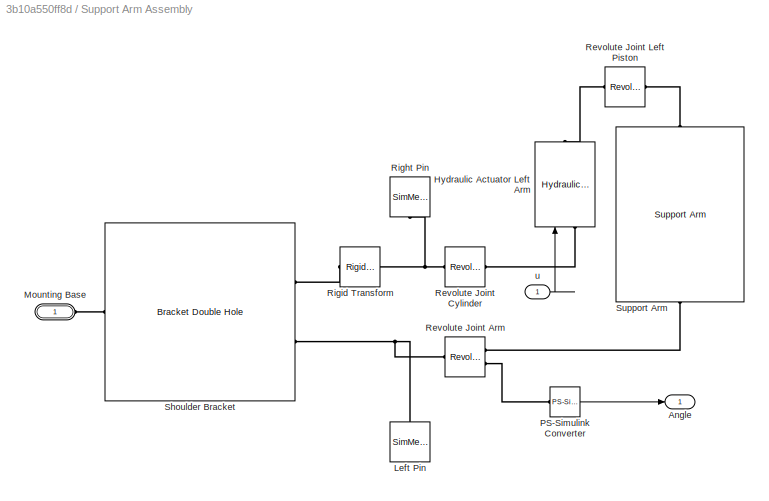
BLOCK [SubSystem] Support Arm Assembly
  Ports = [1, 1, 0, 0, 0, 1]
  RequestExecContextInheritance = off
BLOCK [Outport] Support Arm Assembly/Angle
  IconDisplay = Port number
BLOCK [Reference] Support Arm Assembly/Hydraulic Actuator Left Arm  REF=Backhoe_Lib/Hydraulic Actuator
  Lbase = 0.65
  Lbp = 0.8
  Lcyl = 1.35
  Lhead = 0.5
  Lhp = 0.9
  Lpist = 1.35
  Ports = [1, 0, 0, 0, 0, 1, 1]
  Rbp = 0.075
  Rcyl = 0.2
  Rhp = 0.075
  Rpist = 0.1
  SourceBlock = Backhoe_Lib/Hydraulic Actuator
  SourceType = Hydraulic Actuator
  Wbase = 0.425
  Whead = 0.275
  circlePoints = 25
  connColor = pinColor
  cylColor = cylinderGray
  pistColor = pistonGray
  rhoConn = rho
  rhoCyl = rho
  rhoPist = rho
BLOCK [SimMechanicsBlock] Support Arm Assembly/Left Pin
  CloseFcn = simmechanics.sli.internal.block_dialog(gcbh,'close');
  CopyFcn = simmechanics.sli.internal.block_dialog(gcbh,'close');\nsimmechanics.sli.internal.rtm_callback('CopyFcn',gcbh)
  DeleteFcn = simmechanics.sli.internal.block_dialog(gcbh,'close');\nsimmechanics.sli.internal.rtm_callback('DeleteFcn',gcbh)
  LoadFcn = simmechanics.sli.internal.rtm_callback('LoadFcn',gcbh)
  ModelCloseFcn = simmechanics.sli.internal.model_editor_callback(bdroot(gcbh),'close');\nsimmechanics.sli.internal.rtm_callback('ModelCloseFcn',gcbh)\nsimmechanics.sli.internal.model_callback(bdroot(gcbh),'close');  <repeated x3 — deduplicated; at blocks: Left Pin, Right Pin, Rim>
  OpenFcn = simmechanics.sli.internal.block_dialog(gcbh,'open');
  PauseFcn = simmechanics.sli.internal.model_callback(bdroot(gcbh),'pause');
  Ports = [0, 0, 0, 0, 0, 0, 1]
  PostSaveFcn = simmechanics.sli.internal.model_editor_callback(bdroot(gcbh),'save');\nsimmechanics.sli.internal.rtm_callback('PostSaveFcn',gcbh)
  PreCopyFcn = simmechanics.sli.internal.rtm_callback('PreCopyFcn',gcbh)
  PreDeleteFcn = simmechanics.sli.internal.rtm_callback('PreDeleteFcn',gcbh)
  PreSaveFcn = simmechanics.sli.internal.rtm_callback('PreSaveFcn',gcbh)
  StartFcn = simmechanics.sli.internal.model_callback(bdroot(gcbh),'start');
  StopFcn = simmechanics.sli.internal.model_callback(bdroot(gcbh),'stop');
BLOCK [PMIOPort] Support Arm Assembly/Mounting Base
  Port = 1
  Side = Left
BLOCK [Reference] Support Arm Assembly/PS-Simulink Converter  REF=nesl_utility/PS-Simulink
Converter
  AffineConversion = off
  Frequencies = []
  LeftPortType = input
  PhysicalDomain = network_engine_domain
  Ports = [0, 1, 0, 0, 0, 1]
  PseudoPeriodic = off
  RightPortType = output
  SourceBlock = nesl_utility/PS-Simulink\nConverter
  SourceType = PS-Simulink\nConverter
  SubClassName = ps_output
  Unit = deg
BLOCK [Reference] Support Arm Assembly/Revolute Joint Arm  REF=sm_lib/Joints/Revolute Joint
  ActuationMode = NoActuation
  BlockFunction = simmechanics.library.joints.revolute_joint
  ClassName = RevoluteJoint
  ConstraintWrenchDir = FollowerOnBase
  ConstraintWrenchFrame = BaseFrame
  DampingCoefficient = 0
  DampingCoefficientUnits = N*m/(deg/s)
  EquilibriumPosition = 0
  EquilibriumPositionUnits = deg
  Ports = [0, 0, 0, 0, 0, 1, 2]
  PositionTargetPriority = High
  PositionTargetSpecify = on
  PositionTargetValue = -90
  PositionTargetValueUnits = deg
  SenseAcceleration = off
  SenseConstraintForceX = off
  SenseConstraintForceY = off
  SenseConstraintForceZ = off
  SenseConstraintTorqueX = off
  SenseConstraintTorqueY = off
  SenseConstraintTorqueZ = off
  SensePosition = on
  SenseTorqueForce = off
  SenseVelocity = off
  SourceBlock = sm_lib/Joints/Revolute Joint
  SourceType = Revolute Joint
  SpringStiffness = 0
  SpringStiffnessUnits = N*m/deg
  VelocityTargetPriority = High
  VelocityTargetSpecify = off
  VelocityTargetValue = 0
  VelocityTargetValueUnits = deg/s
BLOCK [Reference] Support Arm Assembly/Revolute Joint Cylinder  REF=sm_lib/Joints/Revolute Joint
  ActuationMode = NoActuation
  BlockFunction = simmechanics.library.joints.revolute_joint
  ClassName = RevoluteJoint
  ConstraintWrenchDir = FollowerOnBase
  ConstraintWrenchFrame = BaseFrame
  DampingCoefficient = 0
  DampingCoefficientUnits = N*m/(deg/s)
  EquilibriumPosition = 0
  EquilibriumPositionUnits = deg
  Ports = [0, 0, 0, 0, 0, 1, 1]
  PositionTargetPriority = High
  PositionTargetSpecify = off
  PositionTargetValue = 0
  PositionTargetValueUnits = deg
  SenseAcceleration = off
  SenseConstraintForceX = off
  SenseConstraintForceY = off
  SenseConstraintForceZ = off
  SenseConstraintTorqueX = off
  SenseConstraintTorqueY = off
  SenseConstraintTorqueZ = off
  SensePosition = off
  SenseTorqueForce = off
  SenseVelocity = off
  SourceBlock = sm_lib/Joints/Revolute Joint
  SourceType = Revolute Joint
  SpringStiffness = 0
  SpringStiffnessUnits = N*m/deg
  VelocityTargetPriority = High
  VelocityTargetSpecify = off
  VelocityTargetValue = 0
  VelocityTargetValueUnits = deg/s
BLOCK [Reference] Support Arm Assembly/Revolute Joint Left Piston  REF=sm_lib/Joints/Revolute Joint
  ActuationMode = NoActuation
  BlockFunction = simmechanics.library.joints.revolute_joint
  ClassName = RevoluteJoint
  ConstraintWrenchDir = FollowerOnBase
  ConstraintWrenchFrame = BaseFrame
  DampingCoefficient = 0
  DampingCoefficientUnits = N*m/(deg/s)
  EquilibriumPosition = 0
  EquilibriumPositionUnits = deg
  Ports = [0, 0, 0, 0, 0, 1, 1]
  PositionTargetPriority = High
  PositionTargetSpecify = off
  PositionTargetValue = 0
  PositionTargetValueUnits = deg
  SenseAcceleration = off
  SenseConstraintForceX = off
  SenseConstraintForceY = off
  SenseConstraintForceZ = off
  SenseConstraintTorqueX = off
  SenseConstraintTorqueY = off
  SenseConstraintTorqueZ = off
  SensePosition = off
  SenseTorqueForce = off
  SenseVelocity = off
  SourceBlock = sm_lib/Joints/Revolute Joint
  SourceType = Revolute Joint
  SpringStiffness = 0
  SpringStiffnessUnits = N*m/deg
  VelocityTargetPriority = High
  VelocityTargetSpecify = off
  VelocityTargetValue = 0
  VelocityTargetValueUnits = deg/s
BLOCK [SimMechanicsBlock] Support Arm Assembly/Right Pin
  CloseFcn = simmechanics.sli.internal.block_dialog(gcbh,'close');
  CopyFcn = simmechanics.sli.internal.block_dialog(gcbh,'close');\nsimmechanics.sli.internal.rtm_callback('CopyFcn',gcbh)
  DeleteFcn = simmechanics.sli.internal.block_dialog(gcbh,'close');\nsimmechanics.sli.internal.rtm_callback('DeleteFcn',gcbh)
  LoadFcn = simmechanics.sli.internal.rtm_callback('LoadFcn',gcbh)
  OpenFcn = simmechanics.sli.internal.block_dialog(gcbh,'open');
  PauseFcn = simmechanics.sli.internal.model_callback(bdroot(gcbh),'pause');
  Ports = [0, 0, 0, 0, 0, 0, 1]
  PostSaveFcn = simmechanics.sli.internal.model_editor_callback(bdroot(gcbh),'save');\nsimmechanics.sli.internal.rtm_callback('PostSaveFcn',gcbh)
  PreCopyFcn = simmechanics.sli.internal.rtm_callback('PreCopyFcn',gcbh)
  PreDeleteFcn = simmechanics.sli.internal.rtm_callback('PreDeleteFcn',gcbh)
  PreSaveFcn = simmechanics.sli.internal.rtm_callback('PreSaveFcn',gcbh)
  StartFcn = simmechanics.sli.internal.model_callback(bdroot(gcbh),'start');
  StopFcn = simmechanics.sli.internal.model_callback(bdroot(gcbh),'stop');
BLOCK [Reference] Support Arm Assembly/Rigid Transform  REF=sm_lib/Frames and
 Transforms/Rigid 
Transform
  BaseAlignAxisA = -Z
  BaseAlignAxisB = -Y
  BlockFunction = simmechanics.library.frames_transforms.rigid_transform
  ClassName = RigidTransform
  FollAlignAxisA = +Z
  FollAlignAxisB = +Y
  Ports = [0, 0, 0, 0, 0, 1, 1]
  RotationAngle = 0
  RotationAngleUnits = deg
  RotationArbitraryAxis = [0 0 1]
  RotationMethod = AlignedAxes
  RotationStandardAxis = +Z
  SourceBlock = sm_lib/Frames and\n Transforms/Rigid \nTransform
  SourceType = Rigid Transform
  TranslationCartesianOffset = [0 0 0]
  TranslationLengthUnit = m
  TranslationMethod = None
  TranslationROffset = 0
  TranslationROffsetUnits = m
  TranslationStandardAxis = +Z
  TranslationStandardOffset = 0
  TranslationThetaOffset = 0
  TranslationThetaOffsetUnits = deg
  TranslationZOffset = 0
  TranslationZOffsetUnits = m
BLOCK [Reference] Support Arm Assembly/Shoulder Bracket  REF=Backhoe_Lib/Bracket Double Hole
  Dbracket = Dbracket
  Dhole = DShoulderHole
  Hbracket = Hbracket
  Hhole = HShoulderHole
  Nc = 25
  Ports = [0, 0, 0, 0, 0, 1, 2]
  Rfillet = RShoulderFillet
  Rhole = RShoulderHole
  SourceBlock = Backhoe_Lib/Bracket Double Hole
  SourceType = Bracket Double Hole
  Tbracket = Tbracket
  Wbracket = Wbracket
  bracketColor = shoulderColor
  rho = rho
BLOCK [Reference] Support Arm Assembly/Support Arm  REF=Backhoe_Lib/Support Arm
  Dconn = Dconn
  Dhole = Dhole
  Hhole = Hhole
  Larm = Larm
  Lfoot = Lfoot
  Lpin = Lpin
  Ports = [0, 0, 0, 0, 0, 1, 1]
  Rfillet = Rfillet
  Rhole = Rhole
  SourceBlock = Backhoe_Lib/Support Arm
  SourceType = Support Arm
  Tarm = Tarm
  Tfoot = Tfoot
  Warm = Warm
  Wfoot = Wfoot
  armColor = armColor
  bracketColor = bracketColor
  circlePoints = circlePoints
  footColor = footColor
  initAngle = AFAngle
  pinColor = pinColor
  rho = rho
BLOCK [Inport] Support Arm Assembly/u
  IconDisplay = Port number
BLOCK [Reference] Support Arm/Arm Bracket to Foot Transform  REF=sm_lib/Frames and
 Transforms/Rigid 
Transform
  BaseAlignAxisA = +Y
  BaseAlignAxisB = +Z
  BlockFunction = simmechanics.library.frames_transforms.rigid_transform
  ClassName = RigidTransform
  FollAlignAxisA = +X
  FollAlignAxisB = +Y
  Ports = [0, 0, 0, 0, 0, 1, 1]
  RotationAngle = 45
  RotationAngleUnits = deg
  RotationArbitraryAxis = [0 0 1]
  RotationMethod = None
  RotationStandardAxis = -Z
  SourceBlock = sm_lib/Frames and\n Transforms/Rigid \nTransform
  SourceType = Rigid Transform
  TranslationCartesianOffset = [-Dconn/2 0 -Tfoot/2]
  TranslationLengthUnit = m
  TranslationMethod = StandardAxis
  TranslationROffset = 0
  TranslationROffsetUnits = m
  TranslationStandardAxis = -Z
  TranslationStandardOffset = Tfoot/2
  TranslationThetaOffset = 0
  TranslationThetaOffsetUnits = deg
  TranslationZOffset = 0
  TranslationZOffsetUnits = m
BLOCK [Reference] Support Arm/Arm-Foot Pin  REF=sm_lib/Body Elements/Solid
  BlockFunction = simmechanics.library.body_elements.solid
  BrickDimensionUnits = m
  BrickDimensions = [1 1 1]
  CenterOfMass = [0 0 0]
  CenterOfMassUnits = m
  ClassName = Solid
  CylinderLength = Lpin
  CylinderLengthUnits = m
  CylinderRadius = Rhole
  CylinderRadiusUnits = m
  Density = rho
  DensityBased = on
  DensityUnits = kg/(m^3)
  EllipsoidRadii = [1 1 1]
  EllipsoidRadiiUnits = m
  ExtGeomFileUnits = m
  ExtrusionCrossSection = [1 1; 1 1]
  ExtrusionCrossSectionUnits = m
  ExtrusionLength = Lpin
  ExtrusionLengthUnits = m
  GeometryShape = Cylinder
  GraphicAmbientColor = [0.15 0.15 0.15 1.0]
  GraphicDiffuseColor = pinColor
  GraphicEmissiveColor = [0.0 0.0 0.0 1.0]
  GraphicOpacity = 1.0
  GraphicShininess = 75
  GraphicSpecularColor = [0.5 0.5 0.5 1.0]
  GraphicType = FromGeometry
  GraphicVisPropType = SimpleVisualProperties
  InertiaType = CalculateFromGeometry
  MarkerShape = Sphere
  MarkerSize = 10
  MarkerSizeUnits = m
  Mass = 1
  MassUnits = kg
  MomentsOfInertia = [1 1 1]
  MomentsOfInertiaUnits = kg*m^2
  PolygonNumSides = 3
  PolygonOuterRadius = 1
  PolygonOuterRadiusUnits = m
  Ports = [0, 0, 0, 0, 0, 0, 1]
  ProductsOfInertia = [0 0 0]
  ProductsOfInertiaUnits = kg*m^2
  RectangleSize = [1 1]
  RectangleSizeUnits = m
  RevolutionAngle = 180
  RevolutionAngleUnits = deg
  RevolutionCrossSection = [1 1; 1 -1; 2 -1; 2 1]
  RevolutionCrossSectionUnits = m
  RevolutionExtent = Full
  SourceBlock = sm_lib/Body Elements/Solid
  SourceType = Solid
  SphereRadius = 1
  SphereRadiusUnits = m
BLOCK [Reference] Support Arm/Crank Arm  REF=Backhoe_Lib/Crank Arm
  D = Dhole
  L = Larm
  Nc = 25
  Ports = [0, 0, 0, 0, 0, 1, 1]
  R = Rhole
  SourceBlock = Backhoe_Lib/Crank Arm
  SourceType = Crank Arm
  T = Tarm
  W = Warm
  color = armColor
  rho = rho
BLOCK [Reference] Support Arm/Foot  REF=sm_lib/Body Elements/Solid
  BlockFunction = simmechanics.library.body_elements.solid
  BrickDimensionUnits = m
  BrickDimensions = [Lfoot Wfoot Tfoot]
  CenterOfMass = [0 0 0]
  CenterOfMassUnits = m
  ClassName = Solid
  CylinderLength = 1
  CylinderLengthUnits = m
  CylinderRadius = 1
  CylinderRadiusUnits = m
  Density = rho
  DensityBased = on
  DensityUnits = kg/(m^3)
  EllipsoidRadii = [1 1 1]
  EllipsoidRadiiUnits = m
  ExtGeomFileUnits = m
  ExtrusionCrossSection = [0 1;1 0; 1 1]
  ExtrusionCrossSectionUnits = m
  ExtrusionLength = 1
  ExtrusionLengthUnits = m
  GeometryShape = Brick
  GraphicAmbientColor = [0.15 0.15 0.15 1.0]
  GraphicDiffuseColor = footColor
  GraphicEmissiveColor = [0.0 0.0 0.0 1.0]
  GraphicOpacity = 1.0
  GraphicShininess = 75
  GraphicSpecularColor = [0.5 0.5 0.5 1.0]
  GraphicType = FromGeometry
  GraphicVisPropType = SimpleVisualProperties
  InertiaType = CalculateFromGeometry
  MarkerShape = Sphere
  MarkerSize = 10
  MarkerSizeUnits = m
  Mass = 1
  MassUnits = kg
  MomentsOfInertia = [1 1 1]
  MomentsOfInertiaUnits = kg*m^2
  PolygonNumSides = 3
  PolygonOuterRadius = 1
  PolygonOuterRadiusUnits = m
  Ports = [0, 0, 0, 0, 0, 0, 1]
  ProductsOfInertia = [0 0 0]
  ProductsOfInertiaUnits = kg*m^2
  RectangleSize = [1 1]
  RectangleSizeUnits = m
  RevolutionAngle = 180
  RevolutionAngleUnits = deg
  RevolutionCrossSection = [1 1; 1 -1; 2 -1; 2 1]
  RevolutionCrossSectionUnits = m
  RevolutionExtent = Full
  SourceBlock = sm_lib/Body Elements/Solid
  SourceType = Solid
  SphereRadius = 1
  SphereRadiusUnits = m
BLOCK [Reference] Support Arm/Foot Alignment  REF=sm_lib/Frames and
 Transforms/Rigid 
Transform
  BaseAlignAxisA = +Y
  BaseAlignAxisB = +Z
  BlockFunction = simmechanics.library.frames_transforms.rigid_transform
  ClassName = RigidTransform
  FollAlignAxisA = +X
  FollAlignAxisB = +Y
  Ports = [0, 0, 0, 0, 0, 1, 1]
  RotationAngle = initAngle
  RotationAngleUnits = deg
  RotationArbitraryAxis = [0 0 1]
  RotationMethod = StandardAxis
  RotationStandardAxis = +Z
  SourceBlock = sm_lib/Frames and\n Transforms/Rigid \nTransform
  SourceType = Rigid Transform
  TranslationCartesianOffset = [0 0 0]
  TranslationLengthUnit = m
  TranslationMethod = None
  TranslationROffset = 0
  TranslationROffsetUnits = m
  TranslationStandardAxis = +Z
  TranslationStandardOffset = 0
  TranslationThetaOffset = 0
  TranslationThetaOffsetUnits = deg
  TranslationZOffset = 0
  TranslationZOffsetUnits = m
BLOCK [Reference] Support Arm/Foot Bracket  REF=Backhoe_Lib/Bracket Double Hole
  Dbracket = Wfoot*0.75
  Dhole = Dconn
  Hbracket = Hhole + Rfillet
  Hhole = Hhole
  Nc = 25
  Ports = [0, 0, 0, 0, 0, 1, 2]
  Rfillet = Rfillet
  Rhole = Rhole
  SourceBlock = Backhoe_Lib/Bracket Double Hole
  SourceType = Bracket Double Hole
  Tbracket = Tfoot
  Wbracket = Dconn + Rfillet
  bracketColor = bracketColor
  rho = rho
BLOCK [PMIOPort] Support Arm/Piston Head
  Port = 2
  Side = Left
BLOCK [Reference] Support Arm/Piston Head Transform  REF=sm_lib/Frames and
Transforms/Rigid
Transform
  BaseAlignAxisA = -Z
  BaseAlignAxisB = -Y
  BlockFunction = simmechanics.library.frames_transforms.rigid_transform
  ClassName = RigidTransform
  FollAlignAxisA = +Z
  FollAlignAxisB = +Y
  Ports = [0, 0, 0, 0, 0, 1, 1]
  RotationAngle = 0
  RotationAngleUnits = deg
  RotationArbitraryAxis = [0 0 1]
  RotationMethod = AlignedAxes
  RotationStandardAxis = +Z
  SourceBlock = sm_lib/Frames and\nTransforms/Rigid\nTransform
  SourceType = Rigid\nTransform
  TranslationCartesianOffset = [0 0 0]
  TranslationLengthUnit = m
  TranslationMethod = None
  TranslationROffset = 0
  TranslationROffsetUnits = m
  TranslationStandardAxis = +Z
  TranslationStandardOffset = 0
  TranslationThetaOffset = 0
  TranslationThetaOffsetUnits = deg
  TranslationZOffset = 0
  TranslationZOffsetUnits = m
BLOCK [Reference] Support Arm/Piston-Foot Pin  REF=sm_lib/Body Elements/Solid
  BlockFunction = simmechanics.library.body_elements.solid
  BrickDimensionUnits = m
  BrickDimensions = [1 1 1]
  CenterOfMass = [0 0 0]
  CenterOfMassUnits = m
  ClassName = Solid
  CylinderLength = Lpin
  CylinderLengthUnits = m
  CylinderRadius = Rhole
  CylinderRadiusUnits = m
  Density = rho
  DensityBased = on
  DensityUnits = kg/(m^3)
  EllipsoidRadii = [1 1 1]
  EllipsoidRadiiUnits = m
  ExtGeomFileUnits = m
  ExtrusionCrossSection = [1 1; 1 1]
  ExtrusionCrossSectionUnits = m
  ExtrusionLength = Lpin
  ExtrusionLengthUnits = m
  GeometryShape = Cylinder
  GraphicAmbientColor = [0.15 0.15 0.15 1.0]
  GraphicDiffuseColor = pinColor
  GraphicEmissiveColor = [0.0 0.0 0.0 1.0]
  GraphicOpacity = 1.0
  GraphicShininess = 75
  GraphicSpecularColor = [0.5 0.5 0.5 1.0]
  GraphicType = FromGeometry
  GraphicVisPropType = SimpleVisualProperties
  InertiaType = CalculateFromGeometry
  MarkerShape = Sphere
  MarkerSize = 10
  MarkerSizeUnits = m
  Mass = 1
  MassUnits = kg
  MomentsOfInertia = [1 1 1]
  MomentsOfInertiaUnits = kg*m^2
  PolygonNumSides = 3
  PolygonOuterRadius = 1
  PolygonOuterRadiusUnits = m
  Ports = [0, 0, 0, 0, 0, 0, 1]
  ProductsOfInertia = [0 0 0]
  ProductsOfInertiaUnits = kg*m^2
  RectangleSize = [1 1]
  RectangleSizeUnits = m
  RevolutionAngle = 180
  RevolutionAngleUnits = deg
  RevolutionCrossSection = [1 1; 1 -1; 2 -1; 2 1]
  RevolutionCrossSectionUnits = m
  RevolutionExtent = Full
  SourceBlock = sm_lib/Body Elements/Solid
  SourceType = Solid
  SphereRadius = 1
  SphereRadiusUnits = m
BLOCK [Reference] Support Arm/Revolute Joint  REF=sm_lib/Joints/Revolute Joint
  ActuationMode = NoActuation
  BlockFunction = simmechanics.library.joints.revolute_joint
  ClassName = RevoluteJoint
  ConstraintWrenchDir = FollowerOnBase
  ConstraintWrenchFrame = BaseFrame
  DampingCoefficient = 0
  DampingCoefficientUnits = N*m/(deg/s)
  EquilibriumPosition = 0
  EquilibriumPositionUnits = deg
  Ports = [0, 0, 0, 0, 0, 1, 1]
  PositionTargetPriority = High
  PositionTargetSpecify = off
  PositionTargetValue = 0
  PositionTargetValueUnits = deg
  SenseAcceleration = off
  SenseConstraintForceX = off
  SenseConstraintForceY = off
  SenseConstraintForceZ = off
  SenseConstraintTorqueX = off
  SenseConstraintTorqueY = off
  SenseConstraintTorqueZ = off
  SensePosition = off
  SenseTorqueForce = off
  SenseVelocity = off
  SourceBlock = sm_lib/Joints/Revolute Joint
  SourceType = Revolute Joint
  SpringStiffness = 0
  SpringStiffnessUnits = N*m/deg
  VelocityTargetPriority = High
  VelocityTargetSpecify = off
  VelocityTargetValue = 0
  VelocityTargetValueUnits = deg/s
BLOCK [PMIOPort] Support Arm/Shoulder Bracket
  Port = 1
  Side = Right
BLOCK [SubSystem] Wheel
  Ports = [0, 0, 0, 0, 0, 1]
  RequestExecContextInheritance = off
BLOCK [PMIOPort] Wheel/Axle
  Port = 1
  Side = Left
BLOCK [SimMechanicsBlock] Wheel/Rim
  CloseFcn = simmechanics.sli.internal.block_dialog(gcbh,'close');
  CopyFcn = simmechanics.sli.internal.block_dialog(gcbh,'close');\nsimmechanics.sli.internal.rtm_callback('CopyFcn',gcbh)
  DeleteFcn = simmechanics.sli.internal.block_dialog(gcbh,'close');\nsimmechanics.sli.internal.rtm_callback('DeleteFcn',gcbh)
  LoadFcn = simmechanics.sli.internal.rtm_callback('LoadFcn',gcbh)
  OpenFcn = simmechanics.sli.internal.block_dialog(gcbh,'open');
  PauseFcn = simmechanics.sli.internal.model_callback(bdroot(gcbh),'pause');
  Ports = [0, 0, 0, 0, 0, 0, 1]
  PostSaveFcn = simmechanics.sli.internal.model_editor_callback(bdroot(gcbh),'save');\nsimmechanics.sli.internal.rtm_callback('PostSaveFcn',gcbh)
  PreCopyFcn = simmechanics.sli.internal.rtm_callback('PreCopyFcn',gcbh)
  PreDeleteFcn = simmechanics.sli.internal.rtm_callback('PreDeleteFcn',gcbh)
  PreSaveFcn = simmechanics.sli.internal.rtm_callback('PreSaveFcn',gcbh)
  StartFcn = simmechanics.sli.internal.model_callback(bdroot(gcbh),'start');
  StopFcn = simmechanics.sli.internal.model_callback(bdroot(gcbh),'stop');
BLOCK [Reference] Wheel/Rim  Transform  REF=sm_lib/Frames and
Transforms/Rigid
Transform
  BaseAlignAxisA = +Y
  BaseAlignAxisB = +Z
  BlockFunction = simmechanics.library.frames_transforms.rigid_transform
  ClassName = RigidTransform
  FollAlignAxisA = +X
  FollAlignAxisB = +Y
  Ports = [0, 0, 0, 0, 0, 1, 1]
  RotationAngle = 0
  RotationAngleUnits = deg
  RotationArbitraryAxis = [0 0 1]
  RotationMethod = None
  RotationStandardAxis = +Z
  SourceBlock = sm_lib/Frames and\nTransforms/Rigid\nTransform
  SourceType = Rigid\nTransform
  TranslationCartesianOffset = [0 0 0]
  TranslationLengthUnit = m
  TranslationMethod = StandardAxis
  TranslationROffset = 0
  TranslationROffsetUnits = m
  TranslationStandardAxis = +Z
  TranslationStandardOffset = W*0.85/2
  TranslationThetaOffset = 0
  TranslationThetaOffsetUnits = deg
  TranslationZOffset = 0
  TranslationZOffsetUnits = m
BLOCK [Reference] Wheel/Tire  REF=sm_lib/Body Elements/Solid
  BlockFunction = simmechanics.library.body_elements.solid
  BrickDimensionUnits = m
  BrickDimensions = [1 1 1]
  CenterOfMass = [0 0 0]
  CenterOfMassUnits = m
  ClassName = Solid
  CylinderLength = 1.5
  CylinderLengthUnits = m
  CylinderRadius = 1.75
  CylinderRadiusUnits = m
  Density = rhoTire
  DensityBased = on
  DensityUnits = kg/(m^3)
  EllipsoidRadii = [1 1 1]
  EllipsoidRadiiUnits = m
  ExtGeomFileType = STL
  ExtGeomFileUnits = m
  ExtrusionCrossSection = tirePoints
  ExtrusionCrossSectionUnits = m
  ExtrusionLength = W
  ExtrusionLengthUnits = m
  GeometryShape = GeneralExtrusion
  GraphicAmbientColor = [0.15 0.15 0.15 1.0]
  GraphicDiffuseColor = tireColor
  GraphicEmissiveColor = [0.0 0.0 0.0 1.0]
  GraphicOpacity = 1.0
  GraphicShininess = 75
  GraphicSpecularColor = [0.5 0.5 0.5 1.0]
  GraphicType = FromGeometry
  GraphicVisPropType = SimpleVisualProperties
  InertiaType = CalculateFromGeometry
  MarkerShape = Sphere
  MarkerSize = 10
  MarkerSizeUnits = m
  Mass = 1
  MassUnits = kg
  MomentsOfInertia = [1 1 1]
  MomentsOfInertiaUnits = kg*m^2
  PolygonNumSides = 3
  PolygonOuterRadius = 1
  PolygonOuterRadiusUnits = m
  Ports = [0, 0, 0, 0, 0, 0, 1]
  ProductsOfInertia = [0 0 0]
  ProductsOfInertiaUnits = kg*m^2
  RectangleSize = [1 1]
  RectangleSizeUnits = m
  RevolutionAngle = 180
  RevolutionAngleUnits = deg
  RevolutionCrossSection = [1 1; 1 -1; 2 -1; 2 1]
  RevolutionCrossSectionUnits = m
  RevolutionExtent = Full
  SourceBlock = sm_lib/Body Elements/Solid
  SourceType = Solid
  SphereRadius = 1
  SphereRadiusUnits = m
BLOCK [Reference] Wheel/Wheel  REF=sm_lib/Body Elements/Solid
  BlockFunction = simmechanics.library.body_elements.solid
  BrickDimensionUnits = m
  BrickDimensions = [1 1 1]
  CenterOfMass = [0 0 0]
  CenterOfMassUnits = m
  ClassName = Solid
  CylinderLength = 1.5
  CylinderLengthUnits = m
  CylinderRadius = 1.75
  CylinderRadiusUnits = m
  Density = rhoWheel
  DensityBased = on
  DensityUnits = kg/(m^3)
  EllipsoidRadii = [1 1 1]
  EllipsoidRadiiUnits = m
  ExtGeomFileType = STL
  ExtGeomFileUnits = m
  ExtrusionCrossSection = wheelPoints
  ExtrusionCrossSectionUnits = m
  ExtrusionLength = W*0.85
  ExtrusionLengthUnits = m
  GeometryShape = GeneralExtrusion
  GraphicAmbientColor = [0.15 0.15 0.15 1.0]
  GraphicDiffuseColor = wheelColor
  GraphicEmissiveColor = [0.0 0.0 0.0 1.0]
  GraphicOpacity = 1.0
  GraphicShininess = 75
  GraphicSpecularColor = [0.5 0.5 0.5 1.0]
  GraphicType = FromGeometry
  GraphicVisPropType = SimpleVisualProperties
  InertiaType = CalculateFromGeometry
  MarkerShape = Sphere
  MarkerSize = 10
  MarkerSizeUnits = m
  Mass = 1
  MassUnits = kg
  MomentsOfInertia = [1 1 1]
  MomentsOfInertiaUnits = kg*m^2
  PolygonNumSides = 3
  PolygonOuterRadius = 1
  PolygonOuterRadiusUnits = m
  Ports = [0, 0, 0, 0, 0, 0, 1]
  ProductsOfInertia = [0 0 0]
  ProductsOfInertiaUnits = kg*m^2
  RectangleSize = [1 1]
  RectangleSizeUnits = m
  RevolutionAngle = 180
  RevolutionAngleUnits = deg
  RevolutionCrossSection = [1 1; 1 -1; 2 -1; 2 1]
  RevolutionCrossSectionUnits = m
  RevolutionExtent = Full
  SourceBlock = sm_lib/Body Elements/Solid
  SourceType = Solid
  SphereRadius = 1
  SphereRadiusUnits = m
LINE Hydraulic Actuator/Hydraulic Actuator/Pressure Input:1 -> Hydraulic Actuator/Hydraulic Actuator/Simulink-PS Converter:1
LINE Hydraulic Actuator/Pressure:1 -> Hydraulic Actuator/Hydraulic Actuator:1
LINE PID Controller/Angle:1 -> PID Controller/Sum:2
LINE PID Controller/Derivative Gain:1 -> PID Controller/Sum1:1
NET PID Controller/Filter Coefficient:1 -> PID Controller/Integrator (D):1, PID Controller/Sum2:3
LINE PID Controller/Integral Gain:1 -> PID Controller/Integrator (I):1
LINE PID Controller/Integrator (D):1 -> PID Controller/Sum1:2
LINE PID Controller/Integrator (I):1 -> PID Controller/Sum2:2
LINE PID Controller/Proportional Gain:1 -> PID Controller/Sum2:1
LINE PID Controller/Reference:1 -> PID Controller/Saturation:1
LINE PID Controller/Saturation:1 -> PID Controller/Sum:1
LINE PID Controller/Sum1:1 -> PID Controller/Filter Coefficient:1
LINE PID Controller/Sum2:1 -> PID Controller/Command:1
NET PID Controller/Sum:1 -> PID Controller/Derivative Gain:1, PID Controller/Integral Gain:1, PID Controller/Proportional Gain:1
LINE Support Arm Assembly/PS-Simulink Converter:1 -> Support Arm Assembly/Angle:1
LINE Support Arm Assembly/u:1 -> Support Arm Assembly/Hydraulic Actuator Left Arm:1
PNET net1: Bracket Double Hole/Base:RConn1 -- Bracket Double Hole/Left Bracket Transform:LConn1 -- Bracket Double Hole/Left Hole Transform:LConn1 -- Bracket Double Hole/Right Bracket Transform:LConn1 -- Bracket Double Hole/Right Hole Transform:LConn1
PLINE Bracket Double Hole/HL:RConn1 -- Bracket Double Hole/Left Hole Transform:RConn1
PLINE Bracket Double Hole/HR:RConn1 -- Bracket Double Hole/Right Hole Transform:RConn1
PLINE Bracket Double Hole/Left Bracket Transform:RConn1 -- Bracket Double Hole/Left Bracket:RConn1
PLINE Bracket Double Hole/Right Bracket Transform:RConn1 -- Bracket Double Hole/Right Bracket:RConn1
PNET net2: Bracket/Base:RConn1 -- Bracket/Hole Transform:LConn1 -- Bracket/Left Bracket Transform:LConn1 -- Bracket/Right Bracket Transform:LConn1
PLINE Bracket/Hole Transform:RConn1 -- Bracket/Hole:RConn1
PLINE Bracket/Left Bracket Transform:RConn1 -- Bracket/Left Bracket:RConn1
PLINE Bracket/Right Bracket Transform:RConn1 -- Bracket/Right Bracket:RConn1
PLINE Bucket Side/Bucket Side:RConn1 -- Bucket Side/Bucket:RConn1
PNET net3: Crank Arm/Crank:RConn1 -- Crank Arm/Left Crank Transform:LConn1 -- Crank Arm/Right Crank Transform:LConn1
PLINE Crank Arm/L:RConn1 -- Crank Arm/Left Crank Transform:RConn1
PLINE Crank Arm/R:RConn1 -- Crank Arm/Right Crank Transform:RConn1
PNET net4: Crank-Arm Pin/Base Transform:LConn1 -- Crank-Arm Pin/Crank Transform:LConn1 -- Crank-Arm Pin/Pin:RConn1
PLINE Crank-Arm Pin/Base Transform:RConn1 -- Crank-Arm Pin/Base:RConn1
PLINE Crank-Arm Pin/Crank Transform:RConn1 -- Crank-Arm Pin/Crank:RConn1
PLINE Hydraulic Actuator/Cylinder Assembly/Base Hole:RConn1 -- Hydraulic Actuator/Cylinder Assembly/Single Bracket:RConn1
PNET net5: Hydraulic Actuator/Cylinder Assembly/Base to Cylinder Transform:LConn1 -- Hydraulic Actuator/Cylinder Assembly/Cylinder:RConn1 -- Hydraulic Actuator/Cylinder Assembly/Prismatic:RConn1
PLINE Hydraulic Actuator/Cylinder Assembly/Base to Cylinder Transform:RConn1 -- Hydraulic Actuator/Cylinder Assembly/Single Bracket:LConn1
PLINE Hydraulic Actuator/Cylinder Assembly:LConn1 -- Hydraulic Actuator/Prismatic  Joint:LConn1
PLINE Hydraulic Actuator/Cylinder Assembly:RConn1 -- Hydraulic Actuator/Cylinder Base:RConn1
PNET net6: Hydraulic Actuator/Hydraulic Actuator/C:RConn1 -- Hydraulic Actuator/Hydraulic Actuator/Mechanical Translational Reference:LConn1 -- Hydraulic Actuator/Hydraulic Actuator/Translational Hydro-Mechanical Converter:LConn1
PLINE Hydraulic Actuator/Hydraulic Actuator/Hydraulic Pressure Source:LConn1 -- Hydraulic Actuator/Hydraulic Actuator/Hydraulic Resistive Tube:RConn1
PLINE Hydraulic Actuator/Hydraulic Actuator/Hydraulic Pressure Source:RConn1 -- Hydraulic Actuator/Hydraulic Actuator/Simulink-PS Converter:RConn1
PLINE Hydraulic Actuator/Hydraulic Actuator/Hydraulic Pressure Source:RConn2 -- Hydraulic Actuator/Hydraulic Actuator/Hydraulic Reference:LConn1
PLINE Hydraulic Actuator/Hydraulic Actuator/Hydraulic Resistive Tube:LConn1 -- Hydraulic Actuator/Hydraulic Actuator/Translational Hydro-Mechanical Converter:LConn2
PLINE Hydraulic Actuator/Hydraulic Actuator/R:RConn1 -- Hydraulic Actuator/Hydraulic Actuator/Translational Hydro-Mechanical Converter:RConn1
PLINE Hydraulic Actuator/Hydraulic Actuator:RConn1 -- Hydraulic Actuator/Simscape Interface:RConn1
PLINE Hydraulic Actuator/Hydraulic Actuator:RConn2 -- Hydraulic Actuator/Simscape Interface:RConn2
PLINE Hydraulic Actuator/Piston Assembly/Head Hole:RConn1 -- Hydraulic Actuator/Piston Assembly/Single Bracket:RConn1
PNET net7: Hydraulic Actuator/Piston Assembly/Piston to Head Transform:LConn1 -- Hydraulic Actuator/Piston Assembly/Piston:RConn1 -- Hydraulic Actuator/Piston Assembly/Prismatic:RConn1
PLINE Hydraulic Actuator/Piston Assembly/Piston to Head Transform:RConn1 -- Hydraulic Actuator/Piston Assembly/Single Bracket:LConn1
PLINE Hydraulic Actuator/Piston Assembly:LConn1 -- Hydraulic Actuator/Prismatic  Joint:RConn1
PLINE Hydraulic Actuator/Piston Assembly:RConn1 -- Hydraulic Actuator/Piston Head:RConn1
PLINE Hydraulic Actuator/Prismatic  Joint:LConn2 -- Hydraulic Actuator/Simscape Interface:LConn1
PLINE Hydraulic Actuator/Prismatic  Joint:RConn2 -- Hydraulic Actuator/Simscape Interface:LConn2
PLINE Hydraulic Actuator/Simscape Interface/C:RConn1 -- Hydraulic Actuator/Simscape Interface/Ideal Translational Velocity Source:RConn2
PLINE Hydraulic Actuator/Simscape Interface/F:RConn1 -- Hydraulic Actuator/Simscape Interface/Ideal Force Sensor:RConn2
PLINE Hydraulic Actuator/Simscape Interface/Ideal Force Sensor:LConn1 -- Hydraulic Actuator/Simscape Interface/R:RConn1
PLINE Hydraulic Actuator/Simscape Interface/Ideal Force Sensor:RConn1 -- Hydraulic Actuator/Simscape Interface/Ideal Translational Velocity Source:LConn1
PLINE Hydraulic Actuator/Simscape Interface/Ideal Translational Velocity Source:RConn1 -- Hydraulic Actuator/Simscape Interface/V:RConn1
PLINE Single Bracket/Base:RConn1 -- Single Bracket/Bracket Transform:LConn1
PNET net8: Single Bracket/Bracket Transform:RConn1 -- Single Bracket/Bracket:RConn1 -- Single Bracket/Hole Transform:LConn1
PLINE Single Bracket/Hole Transform:RConn1 -- Single Bracket/Hole:RConn1
PLINE Support Arm Assembly/Hydraulic Actuator Left Arm:LConn1 -- Support Arm Assembly/Revolute Joint Cylinder:RConn1
PLINE Support Arm Assembly/Hydraulic Actuator Left Arm:RConn1 -- Support Arm Assembly/Revolute Joint Left Piston:RConn1
PNET net9: Support Arm Assembly/Left Pin:RConn1 -- Support Arm Assembly/Revolute Joint Arm:LConn1 -- Support Arm Assembly/Shoulder Bracket:RConn2
PLINE Support Arm Assembly/Mounting Base:RConn1 -- Support Arm Assembly/Shoulder Bracket:LConn1
PLINE Support Arm Assembly/PS-Simulink Converter:LConn1 -- Support Arm Assembly/Revolute Joint Arm:RConn2
PLINE Support Arm Assembly/Revolute Joint Arm:RConn1 -- Support Arm Assembly/Support Arm:RConn1
PNET net10: Support Arm Assembly/Revolute Joint Cylinder:LConn1 -- Support Arm Assembly/Right Pin:RConn1 -- Support Arm Assembly/Rigid Transform:RConn1
PLINE Support Arm Assembly/Revolute Joint Left Piston:LConn1 -- Support Arm Assembly/Support Arm:LConn1
PLINE Support Arm Assembly/Rigid Transform:LConn1 -- Support Arm Assembly/Shoulder Bracket:RConn1
PLINE Support Arm/Arm Bracket to Foot Transform:LConn1 -- Support Arm/Foot Bracket:LConn1
PLINE Support Arm/Arm Bracket to Foot Transform:RConn1 -- Support Arm/Foot:RConn1
PNET net11: Support Arm/Arm-Foot Pin:RConn1 -- Support Arm/Crank Arm:LConn1 -- Support Arm/Foot Alignment:RConn1
PLINE Support Arm/Crank Arm:RConn1 -- Support Arm/Shoulder Bracket:RConn1
PLINE Support Arm/Foot Alignment:LConn1 -- Support Arm/Foot Bracket:RConn1
PLINE Support Arm/Foot Bracket:RConn2 -- Support Arm/Revolute Joint:LConn1
PNET net12: Support Arm/Piston Head Transform:LConn1 -- Support Arm/Piston-Foot Pin:RConn1 -- Support Arm/Revolute Joint:RConn1
PLINE Support Arm/Piston Head Transform:RConn1 -- Support Arm/Piston Head:RConn1
PNET net13: Wheel/Axle:RConn1 -- Wheel/Rim  Transform:LConn1 -- Wheel/Tire:RConn1 -- Wheel/Wheel:RConn1
PLINE Wheel/Rim  Transform:RConn1 -- Wheel/Rim:RConn1
note: NET lines group one-source signal fan-out (src -> all destinations, sorted); 1:1 wires keep LINE; PNET lines group multi-terminal physical nets as a canonical sorted terminal list (undirected conserving connections); 2-terminal nets keep the pairwise PLINE form
